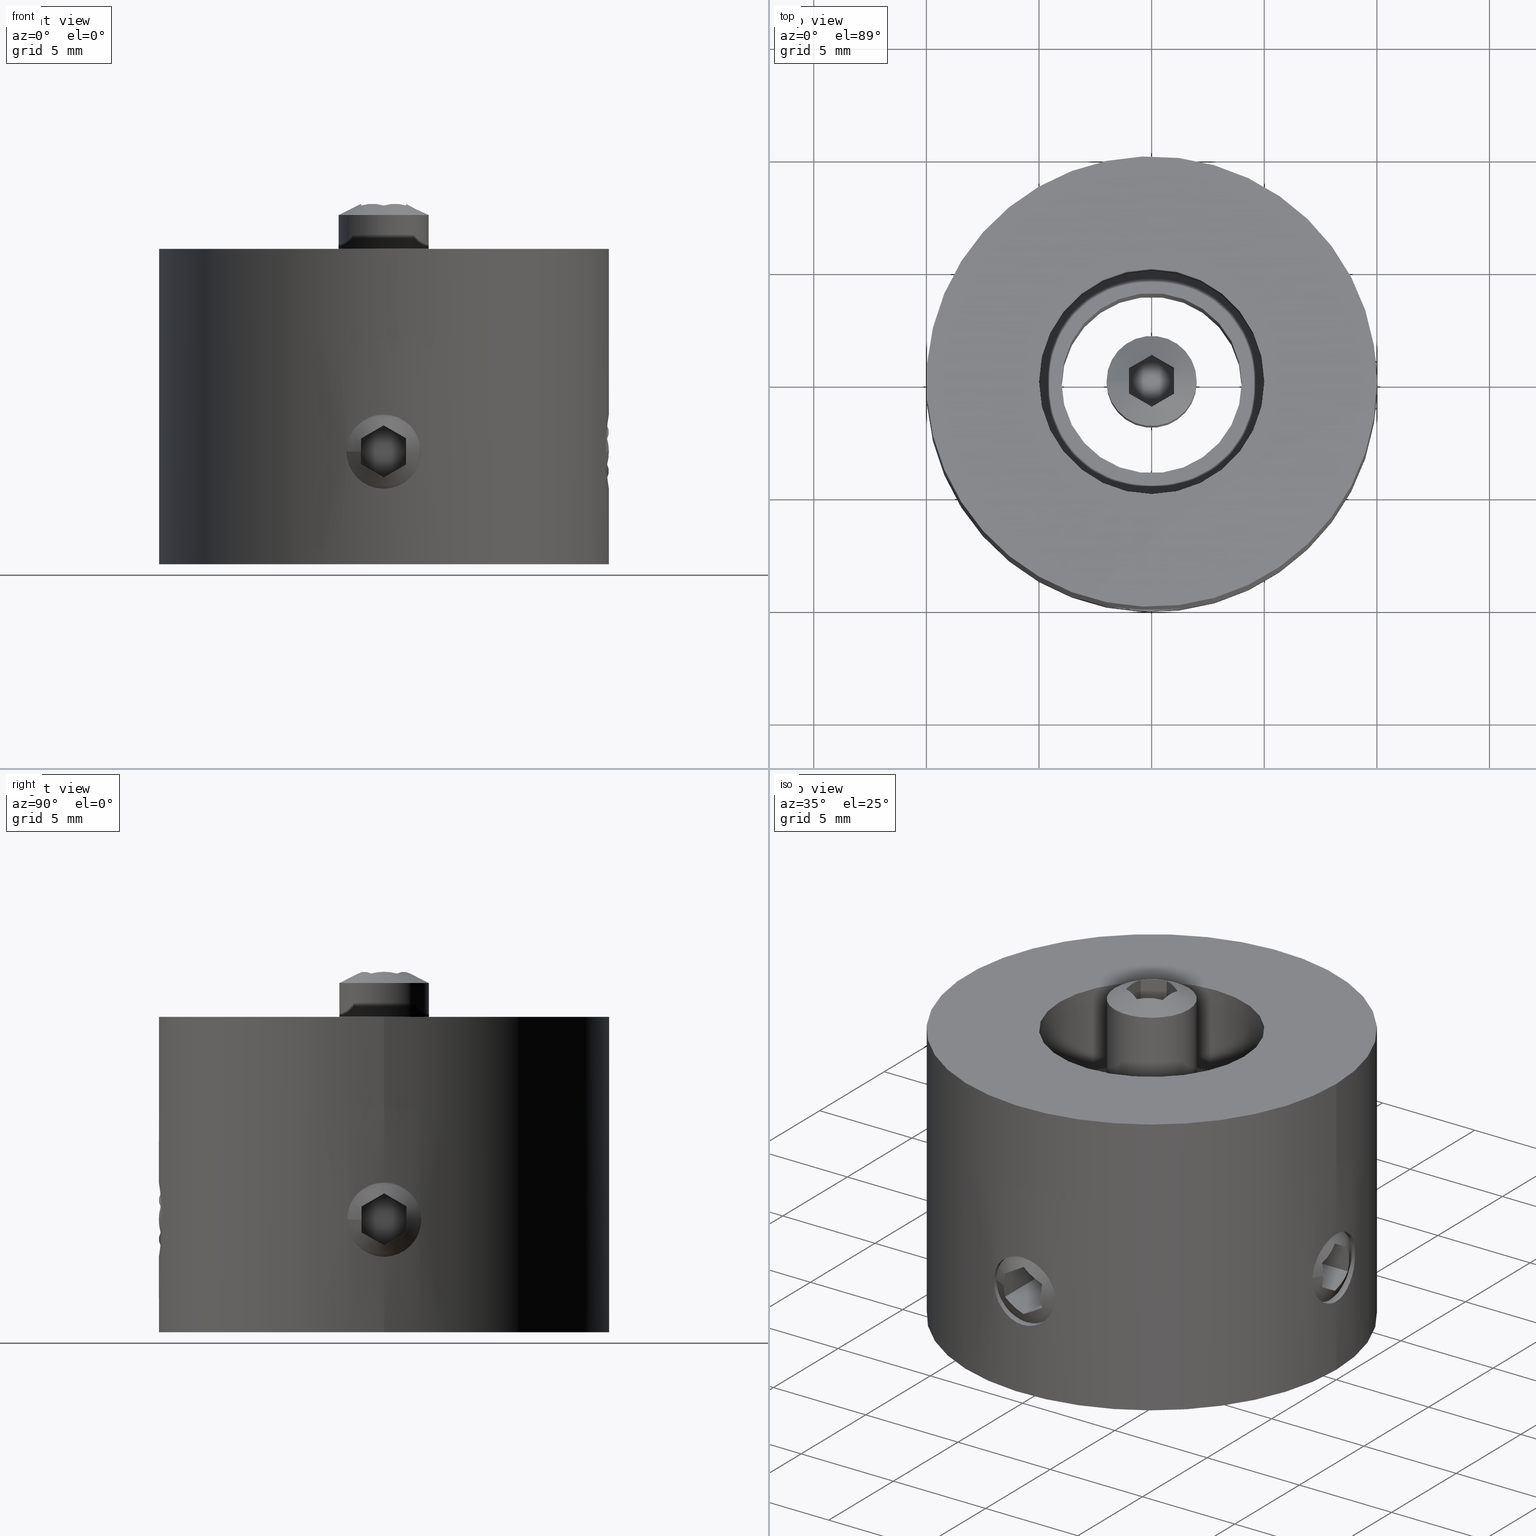
[diagram: canonical four-view strip — front | top / right | iso, engineering-drawing reading convention]
A machine part, canonical four-view strip (front | top / right | iso — engineering-drawing reading convention). The complete STEP part file that produces these views, byte-faithful:
ISO-10303-21;
HEADER;
FILE_DESCRIPTION( ( 'STEP AP203' ), '1' );
FILE_NAME( ' ', '  ', ( '  ' ), ( '  ' ), 'PSStep 10.0', '  ', '  ' );
FILE_SCHEMA( ( 'CONFIG_CONTROL_DESIGN' ) );
ENDSEC;
DATA;
#1 = DESIGN_CONTEXT( '', #93, 'design' );
#2 = APPLICATION_PROTOCOL_DEFINITION( 'INTERNATIONAL STANDARD', 'config_control_design', 1994, #93 );
#3 = PRODUCT_CATEGORY_RELATIONSHIP( 'NONE', 'NONE', #94, #95 );
#4 = DATE_AND_TIME( #96, #97 );
#5 = DATE_TIME_ROLE( 'creation_date' );
#6 = DATE_TIME_ROLE( 'classification_date' );
#7 = PERSON_AND_ORGANIZATION_ROLE( 'creator' );
#8 = PERSON_AND_ORGANIZATION_ROLE( 'design_supplier' );
#9 = PERSON_AND_ORGANIZATION_ROLE( 'classification_officer' );
#10 = PERSON_AND_ORGANIZATION_ROLE( 'design_owner' );
#11 = APPROVAL_PERSON_ORGANIZATION( #98, #99, #100 );
#12 = APPROVAL_DATE_TIME( #4, #99 );
#13 = CC_DESIGN_APPROVAL( #99, ( #101, #102, #103 ) );
#14 = CC_DESIGN_DATE_AND_TIME_ASSIGNMENT( #4, #5, ( #103 ) );
#15 = CC_DESIGN_DATE_AND_TIME_ASSIGNMENT( #4, #6, ( #101 ) );
#16 = CC_DESIGN_PERSON_AND_ORGANIZATION_ASSIGNMENT( #98, #10, ( #104 ) );
#17 = CC_DESIGN_PERSON_AND_ORGANIZATION_ASSIGNMENT( #98, #7, ( #103 ) );
#18 = CC_DESIGN_PERSON_AND_ORGANIZATION_ASSIGNMENT( #98, #7, ( #102 ) );
#19 = CC_DESIGN_PERSON_AND_ORGANIZATION_ASSIGNMENT( #98, #8, ( #102 ) );
#20 = CC_DESIGN_SECURITY_CLASSIFICATION( #101, ( #102 ) );
#21 = CC_DESIGN_PERSON_AND_ORGANIZATION_ASSIGNMENT( #98, #9, ( #101 ) );
#22 = SHAPE_DEFINITION_REPRESENTATION( #105, #106 );
#23 = DESIGN_CONTEXT( '', #107, 'design' );
#24 = APPLICATION_PROTOCOL_DEFINITION( 'INTERNATIONAL STANDARD', 'config_control_design', 1994, #107 );
#25 = PRODUCT_CATEGORY_RELATIONSHIP( 'NONE', 'NONE', #108, #109 );
#26 = DATE_AND_TIME( #110, #111 );
#27 = DATE_TIME_ROLE( 'creation_date' );
#28 = DATE_TIME_ROLE( 'classification_date' );
#29 = PERSON_AND_ORGANIZATION_ROLE( 'creator' );
#30 = PERSON_AND_ORGANIZATION_ROLE( 'design_supplier' );
#31 = PERSON_AND_ORGANIZATION_ROLE( 'classification_officer' );
#32 = PERSON_AND_ORGANIZATION_ROLE( 'design_owner' );
#33 = APPROVAL_PERSON_ORGANIZATION( #112, #113, #114 );
#34 = APPROVAL_DATE_TIME( #26, #113 );
#35 = CC_DESIGN_APPROVAL( #113, ( #115, #116, #117 ) );
#36 = CC_DESIGN_DATE_AND_TIME_ASSIGNMENT( #26, #27, ( #117 ) );
#37 = CC_DESIGN_DATE_AND_TIME_ASSIGNMENT( #26, #28, ( #115 ) );
#38 = CC_DESIGN_PERSON_AND_ORGANIZATION_ASSIGNMENT( #112, #32, ( #118 ) );
#39 = CC_DESIGN_PERSON_AND_ORGANIZATION_ASSIGNMENT( #112, #29, ( #117 ) );
#40 = CC_DESIGN_PERSON_AND_ORGANIZATION_ASSIGNMENT( #112, #29, ( #116 ) );
#41 = CC_DESIGN_PERSON_AND_ORGANIZATION_ASSIGNMENT( #112, #30, ( #116 ) );
#42 = CC_DESIGN_SECURITY_CLASSIFICATION( #115, ( #116 ) );
#43 = CC_DESIGN_PERSON_AND_ORGANIZATION_ASSIGNMENT( #112, #31, ( #115 ) );
#44 = SHAPE_DEFINITION_REPRESENTATION( #119, #120 );
#45 = DESIGN_CONTEXT( '', #121, 'design' );
#46 = APPLICATION_PROTOCOL_DEFINITION( 'INTERNATIONAL STANDARD', 'config_control_design', 1994, #121 );
#47 = PRODUCT_CATEGORY_RELATIONSHIP( 'NONE', 'NONE', #122, #123 );
#48 = DATE_AND_TIME( #124, #125 );
#49 = DATE_TIME_ROLE( 'creation_date' );
#50 = DATE_TIME_ROLE( 'classification_date' );
#51 = PERSON_AND_ORGANIZATION_ROLE( 'creator' );
#52 = PERSON_AND_ORGANIZATION_ROLE( 'design_supplier' );
#53 = PERSON_AND_ORGANIZATION_ROLE( 'classification_officer' );
#54 = PERSON_AND_ORGANIZATION_ROLE( 'design_owner' );
#55 = APPROVAL_PERSON_ORGANIZATION( #126, #127, #128 );
#56 = APPROVAL_DATE_TIME( #48, #127 );
#57 = CC_DESIGN_APPROVAL( #127, ( #129, #130, #131 ) );
#58 = CC_DESIGN_DATE_AND_TIME_ASSIGNMENT( #48, #49, ( #131 ) );
#59 = CC_DESIGN_DATE_AND_TIME_ASSIGNMENT( #48, #50, ( #129 ) );
#60 = CC_DESIGN_PERSON_AND_ORGANIZATION_ASSIGNMENT( #126, #54, ( #132 ) );
#61 = CC_DESIGN_PERSON_AND_ORGANIZATION_ASSIGNMENT( #126, #51, ( #131 ) );
#62 = CC_DESIGN_PERSON_AND_ORGANIZATION_ASSIGNMENT( #126, #51, ( #130 ) );
#63 = CC_DESIGN_PERSON_AND_ORGANIZATION_ASSIGNMENT( #126, #52, ( #130 ) );
#64 = CC_DESIGN_SECURITY_CLASSIFICATION( #129, ( #130 ) );
#65 = CC_DESIGN_PERSON_AND_ORGANIZATION_ASSIGNMENT( #126, #53, ( #129 ) );
#66 = SHAPE_DEFINITION_REPRESENTATION( #133, #134 );
#67 = DESIGN_CONTEXT( '', #135, 'design' );
#68 = APPLICATION_PROTOCOL_DEFINITION( 'INTERNATIONAL STANDARD', 'config_control_design', 1994, #135 );
#69 = PRODUCT_CATEGORY_RELATIONSHIP( 'NONE', 'NONE', #136, #137 );
#70 = DATE_AND_TIME( #138, #139 );
#71 = DATE_TIME_ROLE( 'creation_date' );
#72 = DATE_TIME_ROLE( 'classification_date' );
#73 = PERSON_AND_ORGANIZATION_ROLE( 'creator' );
#74 = PERSON_AND_ORGANIZATION_ROLE( 'design_supplier' );
#75 = PERSON_AND_ORGANIZATION_ROLE( 'classification_officer' );
#76 = PERSON_AND_ORGANIZATION_ROLE( 'design_owner' );
#77 = APPROVAL_PERSON_ORGANIZATION( #140, #141, #142 );
#78 = APPROVAL_DATE_TIME( #70, #141 );
#79 = CC_DESIGN_APPROVAL( #141, ( #143, #144, #145 ) );
#80 = CC_DESIGN_DATE_AND_TIME_ASSIGNMENT( #70, #71, ( #145 ) );
#81 = CC_DESIGN_DATE_AND_TIME_ASSIGNMENT( #70, #72, ( #143 ) );
#82 = CC_DESIGN_PERSON_AND_ORGANIZATION_ASSIGNMENT( #140, #76, ( #146 ) );
#83 = CC_DESIGN_PERSON_AND_ORGANIZATION_ASSIGNMENT( #140, #73, ( #145 ) );
#84 = CC_DESIGN_PERSON_AND_ORGANIZATION_ASSIGNMENT( #140, #73, ( #144 ) );
#85 = CC_DESIGN_PERSON_AND_ORGANIZATION_ASSIGNMENT( #140, #74, ( #144 ) );
#86 = CC_DESIGN_SECURITY_CLASSIFICATION( #143, ( #144 ) );
#87 = CC_DESIGN_PERSON_AND_ORGANIZATION_ASSIGNMENT( #140, #75, ( #143 ) );
#88 = SHAPE_DEFINITION_REPRESENTATION( #147, #148 );
#89 =  ( GEOMETRIC_REPRESENTATION_CONTEXT( 3 )GLOBAL_UNCERTAINTY_ASSIGNED_CONTEXT( ( #151 ) )GLOBAL_UNIT_ASSIGNED_CONTEXT( ( #153, #154, #155 ) )REPRESENTATION_CONTEXT( 'NONE', 'WORKSPACE' ) );
#93 = APPLICATION_CONTEXT( 'CONFIGURATION CONTROLLED 3D DESIGNS OF MECHANICAL PARTS AND ASSEMBLIES' );
#94 = PRODUCT_CATEGORY( 'part', 'NONE' );
#95 = PRODUCT_RELATED_PRODUCT_CATEGORY( 'detail', ' ', ( #104 ) );
#96 = CALENDAR_DATE( 2018, 1, 9 );
#97 = LOCAL_TIME( 8, 27, 3.00000000000000, #157 );
#98 = PERSON_AND_ORGANIZATION( #158, #159 );
#99 = APPROVAL( #160, 'SOLID MODEL' );
#100 = APPROVAL_ROLE( 'APPROVED' );
#101 = SECURITY_CLASSIFICATION( '', '', #161 );
#102 = PRODUCT_DEFINITION_FORMATION_WITH_SPECIFIED_SOURCE( ' ', 'NONE', #104, .NOT_KNOWN. );
#103 = PRODUCT_DEFINITION( 'NONE', 'NONE', #102, #1 );
#104 = PRODUCT( '1', '1', 'PART-1-DESC', ( #162 ) );
#105 = PRODUCT_DEFINITION_SHAPE( 'NONE', 'NONE', #103 );
#106 = ADVANCED_BREP_SHAPE_REPRESENTATION( '1', ( #163, #164 ), #89 );
#107 = APPLICATION_CONTEXT( 'CONFIGURATION CONTROLLED 3D DESIGNS OF MECHANICAL PARTS AND ASSEMBLIES' );
#108 = PRODUCT_CATEGORY( 'part', 'NONE' );
#109 = PRODUCT_RELATED_PRODUCT_CATEGORY( 'detail', ' ', ( #118 ) );
#110 = CALENDAR_DATE( 2018, 1, 9 );
#111 = LOCAL_TIME( 8, 27, 3.00000000000000, #165 );
#112 = PERSON_AND_ORGANIZATION( #166, #167 );
#113 = APPROVAL( #168, 'SOLID MODEL' );
#114 = APPROVAL_ROLE( 'APPROVED' );
#115 = SECURITY_CLASSIFICATION( '', '', #169 );
#116 = PRODUCT_DEFINITION_FORMATION_WITH_SPECIFIED_SOURCE( ' ', 'NONE', #118, .NOT_KNOWN. );
#117 = PRODUCT_DEFINITION( 'NONE', 'NONE', #116, #23 );
#118 = PRODUCT( '2', '2', 'PART-2-DESC', ( #170 ) );
#119 = PRODUCT_DEFINITION_SHAPE( 'NONE', 'NONE', #117 );
#120 = ADVANCED_BREP_SHAPE_REPRESENTATION( '2', ( #171, #172 ), #89 );
#121 = APPLICATION_CONTEXT( 'CONFIGURATION CONTROLLED 3D DESIGNS OF MECHANICAL PARTS AND ASSEMBLIES' );
#122 = PRODUCT_CATEGORY( 'part', 'NONE' );
#123 = PRODUCT_RELATED_PRODUCT_CATEGORY( 'detail', ' ', ( #132 ) );
#124 = CALENDAR_DATE( 2018, 1, 9 );
#125 = LOCAL_TIME( 8, 27, 3.00000000000000, #173 );
#126 = PERSON_AND_ORGANIZATION( #174, #175 );
#127 = APPROVAL( #176, 'SOLID MODEL' );
#128 = APPROVAL_ROLE( 'APPROVED' );
#129 = SECURITY_CLASSIFICATION( '', '', #177 );
#130 = PRODUCT_DEFINITION_FORMATION_WITH_SPECIFIED_SOURCE( ' ', 'NONE', #132, .NOT_KNOWN. );
#131 = PRODUCT_DEFINITION( 'NONE', 'NONE', #130, #45 );
#132 = PRODUCT( 'Assem1', 'Assem1', 'PART-Assem1-DESC', ( #178 ) );
#133 = PRODUCT_DEFINITION_SHAPE( 'NONE', 'NONE', #131 );
#134 = ADVANCED_BREP_SHAPE_REPRESENTATION( 'Assem1', ( #179, #180, #181 ), #89 );
#135 = APPLICATION_CONTEXT( 'CONFIGURATION CONTROLLED 3D DESIGNS OF MECHANICAL PARTS AND ASSEMBLIES' );
#136 = PRODUCT_CATEGORY( 'part', 'NONE' );
#137 = PRODUCT_RELATED_PRODUCT_CATEGORY( 'detail', ' ', ( #146 ) );
#138 = CALENDAR_DATE( 2018, 1, 9 );
#139 = LOCAL_TIME( 8, 27, 3.00000000000000, #182 );
#140 = PERSON_AND_ORGANIZATION( #183, #184 );
#141 = APPROVAL( #185, 'SOLID MODEL' );
#142 = APPROVAL_ROLE( 'APPROVED' );
#143 = SECURITY_CLASSIFICATION( '', '', #186 );
#144 = PRODUCT_DEFINITION_FORMATION_WITH_SPECIFIED_SOURCE( ' ', 'NONE', #146, .NOT_KNOWN. );
#145 = PRODUCT_DEFINITION( 'NONE', 'NONE', #144, #67 );
#146 = PRODUCT( '3', '3', 'PART-3-DESC', ( #187 ) );
#147 = PRODUCT_DEFINITION_SHAPE( 'NONE', 'NONE', #145 );
#148 = ADVANCED_BREP_SHAPE_REPRESENTATION( '3', ( #188 ), #89 );
#151 = UNCERTAINTY_MEASURE_WITH_UNIT( LENGTH_MEASURE( 0.00100000000000000 ), #153, '', '' );
#153 =  ( CONVERSION_BASED_UNIT( 'MILLIMETRE', #191 )LENGTH_UNIT(  )NAMED_UNIT( #194 ) );
#154 =  ( NAMED_UNIT( #196 )PLANE_ANGLE_UNIT(  )SI_UNIT( $, .RADIAN. ) );
#155 =  ( NAMED_UNIT( #196 )SI_UNIT( $, .STERADIAN. )SOLID_ANGLE_UNIT(  ) );
#157 = COORDINATED_UNIVERSAL_TIME_OFFSET( 9, 0, .AHEAD. );
#158 = PERSON( '', 'UNSPECIFIED', $, $, $, $ );
#159 = ORGANIZATION( 'UNSPECIFIED', 'UNSPECIFIED', 'UNSPECIFIED' );
#160 = APPROVAL_STATUS( 'approved' );
#161 = SECURITY_CLASSIFICATION_LEVEL( 'unclassified' );
#162 = MECHANICAL_CONTEXT( '', #93, 'mechanical' );
#163 = MANIFOLD_SOLID_BREP( '1', #202 );
#164 = AXIS2_PLACEMENT_3D( '', #203, #204, #205 );
#165 = COORDINATED_UNIVERSAL_TIME_OFFSET( 9, 0, .AHEAD. );
#166 = PERSON( '', 'UNSPECIFIED', $, $, $, $ );
#167 = ORGANIZATION( 'UNSPECIFIED', 'UNSPECIFIED', 'UNSPECIFIED' );
#168 = APPROVAL_STATUS( 'approved' );
#169 = SECURITY_CLASSIFICATION_LEVEL( 'unclassified' );
#170 = MECHANICAL_CONTEXT( '', #107, 'mechanical' );
#171 = MANIFOLD_SOLID_BREP( '2', #206 );
#172 = AXIS2_PLACEMENT_3D( '', #207, #208, #209 );
#173 = COORDINATED_UNIVERSAL_TIME_OFFSET( 9, 0, .AHEAD. );
#174 = PERSON( '', 'UNSPECIFIED', $, $, $, $ );
#175 = ORGANIZATION( 'UNSPECIFIED', 'UNSPECIFIED', 'UNSPECIFIED' );
#176 = APPROVAL_STATUS( 'approved' );
#177 = SECURITY_CLASSIFICATION_LEVEL( 'unclassified' );
#178 = MECHANICAL_CONTEXT( '', #121, 'mechanical' );
#179 = MAPPED_ITEM( '', #210, #211 );
#180 = MAPPED_ITEM( '', #212, #213 );
#181 = AXIS2_PLACEMENT_3D( '', #214, #215, #216 );
#182 = COORDINATED_UNIVERSAL_TIME_OFFSET( 9, 0, .AHEAD. );
#183 = PERSON( '', 'UNSPECIFIED', $, $, $, $ );
#184 = ORGANIZATION( 'UNSPECIFIED', 'UNSPECIFIED', 'UNSPECIFIED' );
#185 = APPROVAL_STATUS( 'approved' );
#186 = SECURITY_CLASSIFICATION_LEVEL( 'unclassified' );
#187 = MECHANICAL_CONTEXT( '', #135, 'mechanical' );
#188 = MANIFOLD_SOLID_BREP( '3', #217 );
#191 = LENGTH_MEASURE_WITH_UNIT( LENGTH_MEASURE( 1.00000000000000 ), #218 );
#194 = DIMENSIONAL_EXPONENTS( 1.00000000000000, 0.000000000000000, 0.000000000000000, 0.000000000000000, 0.000000000000000, 0.000000000000000, 0.000000000000000 );
#196 = DIMENSIONAL_EXPONENTS( 0.000000000000000, 0.000000000000000, 0.000000000000000, 0.000000000000000, 0.000000000000000, 0.000000000000000, 0.000000000000000 );
#202 = CLOSED_SHELL( '', ( #219, #220, #221, #222, #223, #224 ) );
#203 = CARTESIAN_POINT( '', ( 0.000000000000000, 0.000000000000000, 0.000000000000000 ) );
#204 = DIRECTION( '', ( 0.000000000000000, 0.000000000000000, 1.00000000000000 ) );
#205 = DIRECTION( '', ( 1.00000000000000, 0.000000000000000, 0.000000000000000 ) );
#206 = CLOSED_SHELL( '', ( #225, #226, #227, #228 ) );
#207 = CARTESIAN_POINT( '', ( 0.000000000000000, 0.000000000000000, 0.000000000000000 ) );
#208 = DIRECTION( '', ( 0.000000000000000, 0.000000000000000, 1.00000000000000 ) );
#209 = DIRECTION( '', ( 1.00000000000000, 0.000000000000000, 0.000000000000000 ) );
#210 = REPRESENTATION_MAP( #181, #148 );
#211 = AXIS2_PLACEMENT_3D( '', #229, #230, #231 );
#212 = REPRESENTATION_MAP( #181, #148 );
#213 = AXIS2_PLACEMENT_3D( '', #232, #233, #234 );
#214 = CARTESIAN_POINT( '', ( 0.000000000000000, 0.000000000000000, 0.000000000000000 ) );
#215 = DIRECTION( '', ( 0.000000000000000, 0.000000000000000, 1.00000000000000 ) );
#216 = DIRECTION( '', ( 1.00000000000000, 0.000000000000000, 0.000000000000000 ) );
#217 = CLOSED_SHELL( '', ( #235, #236, #237, #238, #239, #240, #241, #242, #243, #244, #245 ) );
#218 =  ( LENGTH_UNIT(  )NAMED_UNIT( #194 )SI_UNIT( .MILLI., .METRE. ) );
#219 = ADVANCED_FACE( '', ( #247, #248, #249, #250 ), #251, .T. );
#220 = ADVANCED_FACE( '', ( #252, #253, #254, #255 ), #256, .F. );
#221 = ADVANCED_FACE( '', ( #257, #258 ), #259, .F. );
#222 = ADVANCED_FACE( '', ( #260, #261 ), #262, .F. );
#223 = ADVANCED_FACE( '', ( #263, #264 ), #265, .T. );
#224 = ADVANCED_FACE( '', ( #266, #267 ), #268, .F. );
#225 = ADVANCED_FACE( '', ( #269, #270 ), #271, .T. );
#226 = ADVANCED_FACE( '', ( #272, #273 ), #274, .F. );
#227 = ADVANCED_FACE( '', ( #275, #276 ), #277, .T. );
#228 = ADVANCED_FACE( '', ( #278, #279 ), #280, .F. );
#229 = CARTESIAN_POINT( '', ( 0.000000000000000, -4.00000000000000, -5.00000000000000 ) );
#230 = DIRECTION( '', ( 0.000000000000000, -1.00000000000000, 0.000000000000000 ) );
#231 = DIRECTION( '', ( 1.00000000000000, 0.000000000000000, 0.000000000000000 ) );
#232 = CARTESIAN_POINT( '', ( 4.00000000000000, -2.44921270764475E-016, -5.00000000000000 ) );
#233 = DIRECTION( '', ( 1.00000000000000, -6.12303176911189E-017, 0.000000000000000 ) );
#234 = DIRECTION( '', ( 6.12303176911189E-017, 1.00000000000000, 0.000000000000000 ) );
#235 = ADVANCED_FACE( '', ( #281, #282 ), #283, .T. );
#236 = ADVANCED_FACE( '', ( #284, #285 ), #286, .F. );
#237 = ADVANCED_FACE( '', ( #287 ), #288, .T. );
#238 = ADVANCED_FACE( '', ( #289 ), #290, .T. );
#239 = ADVANCED_FACE( '', ( #291 ), #292, .T. );
#240 = ADVANCED_FACE( '', ( #293 ), #294, .T. );
#241 = ADVANCED_FACE( '', ( #295 ), #296, .T. );
#242 = ADVANCED_FACE( '', ( #297 ), #298, .T. );
#243 = ADVANCED_FACE( '', ( #299 ), #300, .T. );
#244 = ADVANCED_FACE( '', ( #301, #302 ), #303, .T. );
#245 = ADVANCED_FACE( '', ( #304, #305 ), #306, .T. );
#247 = FACE_BOUND( '', #307, .T. );
#248 = FACE_BOUND( '', #308, .T. );
#249 = FACE_OUTER_BOUND( '', #309, .T. );
#250 = FACE_OUTER_BOUND( '', #310, .T. );
#251 = CYLINDRICAL_SURFACE( '', #311, 10.0000000000000 );
#252 = FACE_BOUND( '', #312, .T. );
#253 = FACE_BOUND( '', #313, .T. );
#254 = FACE_OUTER_BOUND( '', #314, .T. );
#255 = FACE_OUTER_BOUND( '', #315, .T. );
#256 = CYLINDRICAL_SURFACE( '', #316, 4.00000000000000 );
#257 = FACE_OUTER_BOUND( '', #317, .T. );
#258 = FACE_OUTER_BOUND( '', #318, .T. );
#259 = CYLINDRICAL_SURFACE( '', #319, 1.65000000000000 );
#260 = FACE_OUTER_BOUND( '', #320, .T. );
#261 = FACE_OUTER_BOUND( '', #321, .T. );
#262 = CYLINDRICAL_SURFACE( '', #322, 1.65000000000000 );
#263 = FACE_OUTER_BOUND( '', #323, .T. );
#264 = FACE_BOUND( '', #324, .T. );
#265 = PLANE( '', #325 );
#266 = FACE_OUTER_BOUND( '', #326, .T. );
#267 = FACE_BOUND( '', #327, .T. );
#268 = PLANE( '', #328 );
#269 = FACE_OUTER_BOUND( '', #329, .T. );
#270 = FACE_OUTER_BOUND( '', #330, .T. );
#271 = CYLINDRICAL_SURFACE( '', #331, 10.0000000000000 );
#272 = FACE_OUTER_BOUND( '', #332, .T. );
#273 = FACE_BOUND( '', #333, .T. );
#274 = PLANE( '', #334 );
#275 = FACE_OUTER_BOUND( '', #335, .T. );
#276 = FACE_BOUND( '', #336, .T. );
#277 = PLANE( '', #337 );
#278 = FACE_OUTER_BOUND( '', #338, .T. );
#279 = FACE_OUTER_BOUND( '', #339, .T. );
#280 = CYLINDRICAL_SURFACE( '', #340, 5.00000000000000 );
#281 = FACE_OUTER_BOUND( '', #341, .T. );
#282 = FACE_BOUND( '', #342, .T. );
#283 = CONICAL_SURFACE( '', #343, 2.00000000000000, 1.10714871779409 );
#284 = FACE_OUTER_BOUND( '', #344, .T. );
#285 = FACE_BOUND( '', #345, .T. );
#286 = CONICAL_SURFACE( '', #346, 865.768711028376, 1.04668439371294 );
#287 = FACE_OUTER_BOUND( '', #347, .T. );
#288 = PLANE( '', #348 );
#289 = FACE_OUTER_BOUND( '', #349, .T. );
#290 = PLANE( '', #350 );
#291 = FACE_OUTER_BOUND( '', #351, .T. );
#292 = PLANE( '', #352 );
#293 = FACE_OUTER_BOUND( '', #353, .T. );
#294 = PLANE( '', #354 );
#295 = FACE_OUTER_BOUND( '', #355, .T. );
#296 = PLANE( '', #356 );
#297 = FACE_OUTER_BOUND( '', #357, .T. );
#298 = PLANE( '', #358 );
#299 = FACE_OUTER_BOUND( '', #359, .T. );
#300 = PLANE( '', #360 );
#301 = FACE_OUTER_BOUND( '', #361, .T. );
#302 = FACE_OUTER_BOUND( '', #362, .T. );
#303 = CYLINDRICAL_SURFACE( '', #363, 2.00000000000000 );
#304 = FACE_OUTER_BOUND( '', #364, .T. );
#305 = FACE_BOUND( '', #365, .T. );
#306 = CONICAL_SURFACE( '', #366, 1.00000000000000, 0.785398163397448 );
#307 = EDGE_LOOP( '', ( #367 ) );
#308 = EDGE_LOOP( '', ( #368 ) );
#309 = EDGE_LOOP( '', ( #369 ) );
#310 = EDGE_LOOP( '', ( #370 ) );
#311 = AXIS2_PLACEMENT_3D( '', #371, #372, #373 );
#312 = EDGE_LOOP( '', ( #374 ) );
#313 = EDGE_LOOP( '', ( #375 ) );
#314 = EDGE_LOOP( '', ( #376 ) );
#315 = EDGE_LOOP( '', ( #377 ) );
#316 = AXIS2_PLACEMENT_3D( '', #378, #379, #380 );
#317 = EDGE_LOOP( '', ( #381 ) );
#318 = EDGE_LOOP( '', ( #382 ) );
#319 = AXIS2_PLACEMENT_3D( '', #383, #384, #385 );
#320 = EDGE_LOOP( '', ( #386 ) );
#321 = EDGE_LOOP( '', ( #387 ) );
#322 = AXIS2_PLACEMENT_3D( '', #388, #389, #390 );
#323 = EDGE_LOOP( '', ( #391 ) );
#324 = EDGE_LOOP( '', ( #392 ) );
#325 = AXIS2_PLACEMENT_3D( '', #393, #394, #395 );
#326 = EDGE_LOOP( '', ( #396 ) );
#327 = EDGE_LOOP( '', ( #397 ) );
#328 = AXIS2_PLACEMENT_3D( '', #398, #399, #400 );
#329 = EDGE_LOOP( '', ( #401 ) );
#330 = EDGE_LOOP( '', ( #402 ) );
#331 = AXIS2_PLACEMENT_3D( '', #403, #404, #405 );
#332 = EDGE_LOOP( '', ( #406 ) );
#333 = EDGE_LOOP( '', ( #407 ) );
#334 = AXIS2_PLACEMENT_3D( '', #408, #409, #410 );
#335 = EDGE_LOOP( '', ( #411 ) );
#336 = EDGE_LOOP( '', ( #412 ) );
#337 = AXIS2_PLACEMENT_3D( '', #413, #414, #415 );
#338 = EDGE_LOOP( '', ( #416 ) );
#339 = EDGE_LOOP( '', ( #417 ) );
#340 = AXIS2_PLACEMENT_3D( '', #418, #419, #420 );
#341 = EDGE_LOOP( '', ( #421 ) );
#342 = EDGE_LOOP( '', ( #422, #423, #424, #425, #426, #427 ) );
#343 = AXIS2_PLACEMENT_3D( '', #428, #429, #430 );
#344 = EDGE_LOOP( '', ( #431 ) );
#345 = VERTEX_LOOP( '', #432 );
#346 = AXIS2_PLACEMENT_3D( '', #433, #434, #435 );
#347 = EDGE_LOOP( '', ( #436, #437, #438, #439 ) );
#348 = AXIS2_PLACEMENT_3D( '', #440, #441, #442 );
#349 = EDGE_LOOP( '', ( #443, #444, #445, #446 ) );
#350 = AXIS2_PLACEMENT_3D( '', #447, #448, #449 );
#351 = EDGE_LOOP( '', ( #450, #451, #452, #453, #454, #455 ) );
#352 = AXIS2_PLACEMENT_3D( '', #456, #457, #458 );
#353 = EDGE_LOOP( '', ( #459, #460, #461, #462 ) );
#354 = AXIS2_PLACEMENT_3D( '', #463, #464, #465 );
#355 = EDGE_LOOP( '', ( #466, #467, #468, #469 ) );
#356 = AXIS2_PLACEMENT_3D( '', #470, #471, #472 );
#357 = EDGE_LOOP( '', ( #473, #474, #475, #476 ) );
#358 = AXIS2_PLACEMENT_3D( '', #477, #478, #479 );
#359 = EDGE_LOOP( '', ( #480, #481, #482, #483 ) );
#360 = AXIS2_PLACEMENT_3D( '', #484, #485, #486 );
#361 = EDGE_LOOP( '', ( #487 ) );
#362 = EDGE_LOOP( '', ( #488 ) );
#363 = AXIS2_PLACEMENT_3D( '', #489, #490, #491 );
#364 = EDGE_LOOP( '', ( #492 ) );
#365 = EDGE_LOOP( '', ( #493 ) );
#366 = AXIS2_PLACEMENT_3D( '', #494, #495, #496 );
#367 = ORIENTED_EDGE( '', *, *, #497, .F. );
#368 = ORIENTED_EDGE( '', *, *, #498, .F. );
#369 = ORIENTED_EDGE( '', *, *, #499, .T. );
#370 = ORIENTED_EDGE( '', *, *, #500, .F. );
#371 = CARTESIAN_POINT( '', ( 0.000000000000000, 0.000000000000000, -10.0000000000000 ) );
#372 = DIRECTION( '', ( -0.000000000000000, 0.000000000000000, -1.00000000000000 ) );
#373 = DIRECTION( '', ( 1.00000000000000, 0.000000000000000, 0.000000000000000 ) );
#374 = ORIENTED_EDGE( '', *, *, #501, .T. );
#375 = ORIENTED_EDGE( '', *, *, #502, .T. );
#376 = ORIENTED_EDGE( '', *, *, #503, .F. );
#377 = ORIENTED_EDGE( '', *, *, #504, .T. );
#378 = CARTESIAN_POINT( '', ( 0.000000000000000, 0.000000000000000, -10.0000000000000 ) );
#379 = DIRECTION( '', ( -0.000000000000000, 0.000000000000000, -1.00000000000000 ) );
#380 = DIRECTION( '', ( 1.00000000000000, 0.000000000000000, 0.000000000000000 ) );
#381 = ORIENTED_EDGE( '', *, *, #498, .T. );
#382 = ORIENTED_EDGE( '', *, *, #502, .F. );
#383 = CARTESIAN_POINT( '', ( 10.0000000000000, -6.12303176911189E-016, -5.00000000000000 ) );
#384 = DIRECTION( '', ( -1.00000000000000, 6.12303176911189E-017, -0.000000000000000 ) );
#385 = DIRECTION( '', ( 6.12303176911189E-017, 1.00000000000000, 0.000000000000000 ) );
#386 = ORIENTED_EDGE( '', *, *, #497, .T. );
#387 = ORIENTED_EDGE( '', *, *, #501, .F. );
#388 = CARTESIAN_POINT( '', ( 0.000000000000000, -10.0000000000000, -5.00000000000000 ) );
#389 = DIRECTION( '', ( -0.000000000000000, 1.00000000000000, -0.000000000000000 ) );
#390 = DIRECTION( '', ( 1.00000000000000, 0.000000000000000, 0.000000000000000 ) );
#391 = ORIENTED_EDGE( '', *, *, #500, .T. );
#392 = ORIENTED_EDGE( '', *, *, #504, .F. );
#393 = CARTESIAN_POINT( '', ( 0.000000000000000, 0.000000000000000, 0.000000000000000 ) );
#394 = DIRECTION( '', ( 0.000000000000000, 0.000000000000000, 1.00000000000000 ) );
#395 = DIRECTION( '', ( 1.00000000000000, 0.000000000000000, 0.000000000000000 ) );
#396 = ORIENTED_EDGE( '', *, *, #499, .F. );
#397 = ORIENTED_EDGE( '', *, *, #503, .T. );
#398 = CARTESIAN_POINT( '', ( 0.000000000000000, 0.000000000000000, -10.0000000000000 ) );
#399 = DIRECTION( '', ( 0.000000000000000, 0.000000000000000, 1.00000000000000 ) );
#400 = DIRECTION( '', ( 1.00000000000000, 0.000000000000000, 0.000000000000000 ) );
#401 = ORIENTED_EDGE( '', *, *, #505, .F. );
#402 = ORIENTED_EDGE( '', *, *, #506, .T. );
#403 = CARTESIAN_POINT( '', ( 0.000000000000000, 0.000000000000000, 4.00000000000000 ) );
#404 = DIRECTION( '', ( 0.000000000000000, -0.000000000000000, 1.00000000000000 ) );
#405 = DIRECTION( '', ( -1.00000000000000, 0.000000000000000, 0.000000000000000 ) );
#406 = ORIENTED_EDGE( '', *, *, #506, .F. );
#407 = ORIENTED_EDGE( '', *, *, #507, .T. );
#408 = CARTESIAN_POINT( '', ( 0.000000000000000, 0.000000000000000, 0.000000000000000 ) );
#409 = DIRECTION( '', ( 0.000000000000000, 0.000000000000000, 1.00000000000000 ) );
#410 = DIRECTION( '', ( 1.00000000000000, 0.000000000000000, 0.000000000000000 ) );
#411 = ORIENTED_EDGE( '', *, *, #505, .T. );
#412 = ORIENTED_EDGE( '', *, *, #508, .F. );
#413 = CARTESIAN_POINT( '', ( 0.000000000000000, 0.000000000000000, 4.00000000000000 ) );
#414 = DIRECTION( '', ( 0.000000000000000, 0.000000000000000, 1.00000000000000 ) );
#415 = DIRECTION( '', ( 1.00000000000000, 0.000000000000000, 0.000000000000000 ) );
#416 = ORIENTED_EDGE( '', *, *, #508, .T. );
#417 = ORIENTED_EDGE( '', *, *, #507, .F. );
#418 = CARTESIAN_POINT( '', ( 0.000000000000000, 0.000000000000000, 4.00000000000000 ) );
#419 = DIRECTION( '', ( 0.000000000000000, -0.000000000000000, 1.00000000000000 ) );
#420 = DIRECTION( '', ( -1.00000000000000, 0.000000000000000, 0.000000000000000 ) );
#421 = ORIENTED_EDGE( '', *, *, #509, .F. );
#422 = ORIENTED_EDGE( '', *, *, #510, .T. );
#423 = ORIENTED_EDGE( '', *, *, #511, .T. );
#424 = ORIENTED_EDGE( '', *, *, #512, .T. );
#425 = ORIENTED_EDGE( '', *, *, #513, .T. );
#426 = ORIENTED_EDGE( '', *, *, #514, .T. );
#427 = ORIENTED_EDGE( '', *, *, #515, .T. );
#428 = CARTESIAN_POINT( '', ( 0.000000000000000, 0.000000000000000, 5.50000000000000 ) );
#429 = DIRECTION( '', ( -0.000000000000000, -0.000000000000000, -1.00000000000000 ) );
#430 = DIRECTION( '', ( -1.00000000000000, 0.000000000000000, 0.000000000000000 ) );
#431 = ORIENTED_EDGE( '', *, *, #516, .T. );
#432 = VERTEX_POINT( '', #517 );
#433 = CARTESIAN_POINT( '', ( 0.000000000000000, 0.000000000000000, -499.866306882837 ) );
#434 = DIRECTION( '', ( -0.000000000000000, -0.000000000000000, -1.00000000000000 ) );
#435 = DIRECTION( '', ( -1.00000000000000, 0.000000000000000, 0.000000000000000 ) );
#436 = ORIENTED_EDGE( '', *, *, #518, .T. );
#437 = ORIENTED_EDGE( '', *, *, #519, .F. );
#438 = ORIENTED_EDGE( '', *, *, #520, .F. );
#439 = ORIENTED_EDGE( '', *, *, #513, .F. );
#440 = CARTESIAN_POINT( '', ( 1.00000000000000, -0.577350269189626, 11.7462112512353 ) );
#441 = DIRECTION( '', ( -1.00000000000000, 3.75578649684290E-016, 0.000000000000000 ) );
#442 = DIRECTION( '', ( -3.75578649684290E-016, -1.00000000000000, 0.000000000000000 ) );
#443 = ORIENTED_EDGE( '', *, *, #521, .T. );
#444 = ORIENTED_EDGE( '', *, *, #522, .F. );
#445 = ORIENTED_EDGE( '', *, *, #518, .F. );
#446 = ORIENTED_EDGE( '', *, *, #512, .F. );
#447 = CARTESIAN_POINT( '', ( 1.00000000000000, 0.577350269189626, 11.7462112512353 ) );
#448 = DIRECTION( '', ( -0.500000000000000, -0.866025403784439, 0.000000000000000 ) );
#449 = DIRECTION( '', ( 0.866025403784439, -0.500000000000000, 0.000000000000000 ) );
#450 = ORIENTED_EDGE( '', *, *, #519, .T. );
#451 = ORIENTED_EDGE( '', *, *, #522, .T. );
#452 = ORIENTED_EDGE( '', *, *, #523, .T. );
#453 = ORIENTED_EDGE( '', *, *, #524, .T. );
#454 = ORIENTED_EDGE( '', *, *, #525, .T. );
#455 = ORIENTED_EDGE( '', *, *, #526, .T. );
#456 = CARTESIAN_POINT( '', ( 1.00000000000000, 0.577350269189626, 3.50000000000000 ) );
#457 = DIRECTION( '', ( 0.000000000000000, -0.000000000000000, 1.00000000000000 ) );
#458 = DIRECTION( '', ( 1.00000000000000, 0.000000000000000, -0.000000000000000 ) );
#459 = ORIENTED_EDGE( '', *, *, #520, .T. );
#460 = ORIENTED_EDGE( '', *, *, #526, .F. );
#461 = ORIENTED_EDGE( '', *, *, #527, .F. );
#462 = ORIENTED_EDGE( '', *, *, #514, .F. );
#463 = CARTESIAN_POINT( '', ( -2.12108042409203E-016, -1.15470053837925, 11.7462112512353 ) );
#464 = DIRECTION( '', ( -0.500000000000000, 0.866025403784439, 0.000000000000000 ) );
#465 = DIRECTION( '', ( -0.866025403784439, -0.500000000000000, 0.000000000000000 ) );
#466 = ORIENTED_EDGE( '', *, *, #527, .T. );
#467 = ORIENTED_EDGE( '', *, *, #525, .F. );
#468 = ORIENTED_EDGE( '', *, *, #528, .F. );
#469 = ORIENTED_EDGE( '', *, *, #515, .F. );
#470 = CARTESIAN_POINT( '', ( -1.00000000000000, -0.577350269189626, 11.7462112512353 ) );
#471 = DIRECTION( '', ( 0.500000000000000, 0.866025403784439, -0.000000000000000 ) );
#472 = DIRECTION( '', ( -0.866025403784439, 0.500000000000000, 0.000000000000000 ) );
#473 = ORIENTED_EDGE( '', *, *, #528, .T. );
#474 = ORIENTED_EDGE( '', *, *, #524, .F. );
#475 = ORIENTED_EDGE( '', *, *, #529, .F. );
#476 = ORIENTED_EDGE( '', *, *, #510, .F. );
#477 = CARTESIAN_POINT( '', ( -1.00000000000000, 0.577350269189626, 11.7462112512353 ) );
#478 = DIRECTION( '', ( 1.00000000000000, 1.87789324842145E-016, -0.000000000000000 ) );
#479 = DIRECTION( '', ( -1.87789324842145E-016, 1.00000000000000, 0.000000000000000 ) );
#480 = ORIENTED_EDGE( '', *, *, #529, .T. );
#481 = ORIENTED_EDGE( '', *, *, #523, .F. );
#482 = ORIENTED_EDGE( '', *, *, #521, .F. );
#483 = ORIENTED_EDGE( '', *, *, #511, .F. );
#484 = CARTESIAN_POINT( '', ( 7.07026808030676E-017, 1.15470053837925, 11.7462112512353 ) );
#485 = DIRECTION( '', ( 0.500000000000000, -0.866025403784439, 0.000000000000000 ) );
#486 = DIRECTION( '', ( 0.866025403784439, 0.500000000000000, 0.000000000000000 ) );
#487 = ORIENTED_EDGE( '', *, *, #509, .T. );
#488 = ORIENTED_EDGE( '', *, *, #530, .F. );
#489 = CARTESIAN_POINT( '', ( 0.000000000000000, 0.000000000000000, 0.000000000000000 ) );
#490 = DIRECTION( '', ( 0.000000000000000, -0.000000000000000, 1.00000000000000 ) );
#491 = DIRECTION( '', ( -1.00000000000000, 0.000000000000000, 0.000000000000000 ) );
#492 = ORIENTED_EDGE( '', *, *, #530, .T. );
#493 = ORIENTED_EDGE( '', *, *, #516, .F. );
#494 = CARTESIAN_POINT( '', ( 0.000000000000000, 0.000000000000000, -1.08420217248550E-016 ) );
#495 = DIRECTION( '', ( 0.000000000000000, -0.000000000000000, 1.00000000000000 ) );
#496 = DIRECTION( '', ( 1.00000000000000, 0.000000000000000, -0.000000000000000 ) );
#497 = EDGE_CURVE( '', #531, #531, #532, .T. );
#498 = EDGE_CURVE( '', #533, #533, #534, .T. );
#499 = EDGE_CURVE( '', #535, #535, #536, .T. );
#500 = EDGE_CURVE( '', #537, #537, #538, .T. );
#501 = EDGE_CURVE( '', #539, #539, #540, .T. );
#502 = EDGE_CURVE( '', #541, #541, #542, .T. );
#503 = EDGE_CURVE( '', #543, #543, #544, .T. );
#504 = EDGE_CURVE( '', #545, #545, #546, .T. );
#505 = EDGE_CURVE( '', #547, #547, #548, .T. );
#506 = EDGE_CURVE( '', #549, #549, #550, .T. );
#507 = EDGE_CURVE( '', #551, #551, #552, .T. );
#508 = EDGE_CURVE( '', #553, #553, #554, .T. );
#509 = EDGE_CURVE( '', #555, #555, #556, .T. );
#510 = EDGE_CURVE( '', #557, #558, #559, .T. );
#511 = EDGE_CURVE( '', #558, #560, #561, .T. );
#512 = EDGE_CURVE( '', #560, #562, #563, .T. );
#513 = EDGE_CURVE( '', #562, #564, #565, .F. );
#514 = EDGE_CURVE( '', #564, #566, #567, .T. );
#515 = EDGE_CURVE( '', #566, #557, #568, .T. );
#516 = EDGE_CURVE( '', #569, #569, #570, .T. );
#517 = CARTESIAN_POINT( '', ( 0.000000000000000, 0.000000000000000, 0.578034682000000 ) );
#518 = EDGE_CURVE( '', #562, #571, #572, .T. );
#519 = EDGE_CURVE( '', #573, #571, #574, .T. );
#520 = EDGE_CURVE( '', #564, #573, #575, .T. );
#521 = EDGE_CURVE( '', #560, #576, #577, .T. );
#522 = EDGE_CURVE( '', #571, #576, #578, .T. );
#523 = EDGE_CURVE( '', #576, #579, #580, .T. );
#524 = EDGE_CURVE( '', #579, #581, #582, .T. );
#525 = EDGE_CURVE( '', #581, #583, #584, .T. );
#526 = EDGE_CURVE( '', #583, #573, #585, .T. );
#527 = EDGE_CURVE( '', #566, #583, #586, .T. );
#528 = EDGE_CURVE( '', #557, #581, #587, .T. );
#529 = EDGE_CURVE( '', #558, #579, #588, .T. );
#530 = EDGE_CURVE( '', #589, #589, #590, .T. );
#531 = VERTEX_POINT( '', #591 );
#532 = B_SPLINE_CURVE_WITH_KNOTS( '', 3, ( #592, #593, #594, #595, #596, #597, #598, #599, #600, #601, #602, #603, #604, #605, #606, #607, #608, #609, #610, #611, #612, #613, #614, #615, #616, #617, #618, #619, #620, #621, #622, #623, #624, #625, #626, #627, #628, #629, #630, #631, #632, #633, #634, #635, #636, #637, #638, #639, #640, #641 ), .UNSPECIFIED., .T., .F., ( 2, 2, 2, 2, 2, 2, 2, 2, 2, 2, 2, 2, 2, 2, 2, 2, 2, 2, 2, 2, 2, 2, 2, 2, 2, 2, 2 ), ( -0.000645854978295161, 0.000000000000000, 0.000322927489147579, 0.000645854978295158, 0.000968782467442737, 0.00129170995659032, 0.00193756493488547, 0.00258341991318063, 0.00290634740232821, 0.00322927489147579, 0.00387512986977095, 0.00419805735891853, 0.00452098484806611, 0.00484391233721369, 0.00516683982636127, 0.00581269480465643, 0.00645854978295159, 0.00678147727209917, 0.00710440476124675, 0.00775025973954191, 0.00807318722868950, 0.00839611471783708, 0.00871904220698466, 0.00904196969613224, 0.00968782467442740, 0.0103336796527226, 0.0106566071418701 ), .UNSPECIFIED. );
#533 = VERTEX_POINT( '', #642 );
#534 = B_SPLINE_CURVE_WITH_KNOTS( '', 3, ( #643, #644, #645, #646, #647, #648, #649, #650, #651, #652, #653, #654, #655, #656, #657, #658, #659, #660, #661, #662, #663, #664, #665, #666, #667, #668, #669, #670, #671, #672, #673, #674, #675, #676, #677, #678, #679, #680, #681, #682, #683, #684, #685, #686, #687, #688, #689, #690, #691, #692 ), .UNSPECIFIED., .T., .F., ( 2, 2, 2, 2, 2, 2, 2, 2, 2, 2, 2, 2, 2, 2, 2, 2, 2, 2, 2, 2, 2, 2, 2, 2, 2, 2, 2 ), ( -0.000645856105121249, 0.000000000000000, 0.000322928052560626, 0.000645856105121253, 0.000968784157681879, 0.00129171221024251, 0.00193756831536376, 0.00258342442048501, 0.00290635247304564, 0.00322928052560626, 0.00387513663072752, 0.00419806468328814, 0.00452099273584877, 0.00484392078840939, 0.00516684884097002, 0.00581270494609127, 0.00645856105121252, 0.00678148910377314, 0.00710441715633377, 0.00775027326145502, 0.00807320131401564, 0.00839612936657627, 0.00871905741913689, 0.00904198547169752, 0.00968784157681877, 0.0103336976819400, 0.0106566257345006 ), .UNSPECIFIED. );
#535 = VERTEX_POINT( '', #693 );
#536 = CIRCLE( '', #694, 10.0000000000000 );
#537 = VERTEX_POINT( '', #695 );
#538 = CIRCLE( '', #696, 10.0000000000000 );
#539 = VERTEX_POINT( '', #697 );
#540 = B_SPLINE_CURVE_WITH_KNOTS( '', 3, ( #698, #699, #700, #701, #702, #703, #704, #705, #706, #707, #708, #709, #710, #711, #712, #713, #714, #715, #716, #717, #718, #719, #720, #721, #722, #723, #724, #725, #726, #727, #728, #729, #730, #731, #732, #733, #734, #735, #736, #737, #738, #739, #740, #741, #742, #743, #744, #745, #746, #747, #748, #749, #750, #751 ), .UNSPECIFIED., .T., .F., ( 2, 2, 2, 2, 2, 2, 2, 2, 2, 2, 2, 2, 2, 2, 2, 2, 2, 2, 2, 2, 2, 2, 2, 2, 2, 2, 2, 2, 2 ), ( -0.000651913605263665, 0.000000000000000, 0.000325956802631832, 0.000651913605263665, 0.00130382721052733, 0.00195574081579099, 0.00228169761842283, 0.00260765442105466, 0.00293361122368649, 0.00325956802631832, 0.00358552482895015, 0.00391148163158199, 0.00423743843421382, 0.00456339523684565, 0.00521530884210931, 0.00554126564474115, 0.00586722244737298, 0.00651913605263664, 0.00684509285526848, 0.00717104965790031, 0.00749700646053214, 0.00782296326316397, 0.00847487686842764, 0.00880083367105947, 0.00912679047369130, 0.00945274727632314, 0.00977870407895497, 0.0104306176842186, 0.0107565744868505 ), .UNSPECIFIED. );
#541 = VERTEX_POINT( '', #752 );
#542 = B_SPLINE_CURVE_WITH_KNOTS( '', 3, ( #753, #754, #755, #756, #757, #758, #759, #760, #761, #762, #763, #764, #765, #766, #767, #768, #769, #770, #771, #772, #773, #774, #775, #776, #777, #778, #779, #780, #781, #782, #783, #784, #785, #786, #787, #788, #789, #790, #791, #792, #793, #794, #795, #796, #797, #798, #799, #800, #801, #802, #803, #804, #805, #806 ), .UNSPECIFIED., .T., .F., ( 2, 2, 2, 2, 2, 2, 2, 2, 2, 2, 2, 2, 2, 2, 2, 2, 2, 2, 2, 2, 2, 2, 2, 2, 2, 2, 2, 2, 2 ), ( -0.000651949910615195, 0.000000000000000, 0.000325974955307595, 0.000651949910615189, 0.00130389982123038, 0.00195584973184557, 0.00228182468715316, 0.00260779964246076, 0.00293377459776835, 0.00325974955307595, 0.00358572450838354, 0.00391169946369114, 0.00423767441899874, 0.00456364937430633, 0.00521559928492153, 0.00554157424022912, 0.00586754919553672, 0.00651949910615191, 0.00684547406145951, 0.00717144901676711, 0.00749742397207470, 0.00782339892738230, 0.00847534883799750, 0.00880132379330509, 0.00912729874861269, 0.00945327370392029, 0.00977924865922788, 0.0104311985698431, 0.0107571735251507 ), .UNSPECIFIED. );
#543 = VERTEX_POINT( '', #807 );
#544 = CIRCLE( '', #808, 4.00000000000000 );
#545 = VERTEX_POINT( '', #809 );
#546 = CIRCLE( '', #810, 4.00000000000000 );
#547 = VERTEX_POINT( '', #811 );
#548 = CIRCLE( '', #812, 10.0000000000000 );
#549 = VERTEX_POINT( '', #813 );
#550 = CIRCLE( '', #814, 10.0000000000000 );
#551 = VERTEX_POINT( '', #815 );
#552 = CIRCLE( '', #816, 5.00000000000000 );
#553 = VERTEX_POINT( '', #817 );
#554 = CIRCLE( '', #818, 5.00000000000000 );
#555 = VERTEX_POINT( '', #819 );
#556 = CIRCLE( '', #820, 2.00000000000000 );
#557 = VERTEX_POINT( '', #821 );
#558 = VERTEX_POINT( '', #822 );
#559 = B_SPLINE_CURVE_WITH_KNOTS( '', 3, ( #823, #824, #825, #826, #827, #828 ), .UNSPECIFIED., .F., .F., ( 4, 2, 4 ), ( 0.00103458309332885, 0.00161823594737898, 0.00220188880142910 ), .UNSPECIFIED. );
#560 = VERTEX_POINT( '', #829 );
#561 = B_SPLINE_CURVE_WITH_KNOTS( '', 3, ( #830, #831, #832, #833, #834, #835 ), .UNSPECIFIED., .F., .F., ( 4, 2, 4 ), ( 2.34956865816957E-007, 0.000579233426840285, 0.00115823189681475 ), .UNSPECIFIED. );
#562 = VERTEX_POINT( '', #836 );
#563 = B_SPLINE_CURVE_WITH_KNOTS( '', 3, ( #837, #838, #839, #840, #841, #842 ), .UNSPECIFIED., .F., .F., ( 4, 2, 4 ), ( 2.34956865817124E-007, 0.000579233426840285, 0.00115823189681475 ), .UNSPECIFIED. );
#564 = VERTEX_POINT( '', #843 );
#565 = B_SPLINE_CURVE_WITH_KNOTS( '', 3, ( #844, #845, #846, #847, #848, #849 ), .UNSPECIFIED., .F., .F., ( 4, 2, 4 ), ( 0.00103458309332885, 0.00161823594737898, 0.00220188880142910 ), .UNSPECIFIED. );
#566 = VERTEX_POINT( '', #850 );
#567 = B_SPLINE_CURVE_WITH_KNOTS( '', 3, ( #851, #852, #853, #854, #855, #856 ), .UNSPECIFIED., .F., .F., ( 4, 2, 4 ), ( 2.34956865816957E-007, 0.000579233426840285, 0.00115823189681475 ), .UNSPECIFIED. );
#568 = B_SPLINE_CURVE_WITH_KNOTS( '', 3, ( #857, #858, #859, #860, #861, #862 ), .UNSPECIFIED., .F., .F., ( 4, 2, 4 ), ( 2.34956865817119E-007, 0.000579233426840285, 0.00115823189681475 ), .UNSPECIFIED. );
#569 = VERTEX_POINT( '', #863 );
#570 = CIRCLE( '', #864, 1.00000000000000 );
#571 = VERTEX_POINT( '', #865 );
#572 = LINE( '', #866, #867 );
#573 = VERTEX_POINT( '', #868 );
#574 = LINE( '', #869, #870 );
#575 = LINE( '', #871, #872 );
#576 = VERTEX_POINT( '', #873 );
#577 = LINE( '', #874, #875 );
#578 = LINE( '', #876, #877 );
#579 = VERTEX_POINT( '', #878 );
#580 = LINE( '', #879, #880 );
#581 = VERTEX_POINT( '', #881 );
#582 = LINE( '', #882, #883 );
#583 = VERTEX_POINT( '', #884 );
#584 = LINE( '', #885, #886 );
#585 = LINE( '', #887, #888 );
#586 = LINE( '', #889, #890 );
#587 = LINE( '', #891, #892 );
#588 = LINE( '', #893, #894 );
#589 = VERTEX_POINT( '', #895 );
#590 = CIRCLE( '', #896, 2.00000000000000 );
#591 = CARTESIAN_POINT( '', ( 1.65000000000000, -9.86293566845085, -5.00000000000000 ) );
#592 = CARTESIAN_POINT( '', ( 1.65000000000000, -9.86293566845086, -5.21841436253626 ) );
#593 = CARTESIAN_POINT( '', ( 1.65000000000000, -9.86293566845085, -4.89079281873187 ) );
#594 = CARTESIAN_POINT( '', ( 1.63926527518261, -9.86474848926253, -4.78344857279940 ) );
#595 = CARTESIAN_POINT( '', ( 1.59724025971636, -9.87164003352877, -4.57232171462261 ) );
#596 = CARTESIAN_POINT( '', ( 1.56542644403774, -9.87680100993784, -4.46743126881361 ) );
#597 = CARTESIAN_POINT( '', ( 1.48254560968772, -9.88958121746302, -4.26771049418566 ) );
#598 = CARTESIAN_POINT( '', ( 1.43185514551970, -9.89714318999638, -4.17301510751915 ) );
#599 = CARTESIAN_POINT( '', ( 1.31212664871866, -9.91372665241308, -3.99380080110092 ) );
#600 = CARTESIAN_POINT( '', ( 1.24256410864884, -9.92279625291681, -3.90909457310512 ) );
#601 = CARTESIAN_POINT( '', ( 1.01465468495119, -9.94956682646610, -3.68123666701318 ) );
#602 = CARTESIAN_POINT( '', ( 0.830868141320272, -9.96740695646322, -3.55836016826912 ) );
#603 = CARTESIAN_POINT( '', ( 0.433954281828612, -9.99255858052856, -3.39365291609295 ) );
#604 = CARTESIAN_POINT( '', ( 0.216567991732481, -9.99997956631570, -3.35012384053074 ) );
#605 = CARTESIAN_POINT( '', ( -0.106865615143670, -10.0000101497820, -3.34993848615969 ) );
#606 = CARTESIAN_POINT( '', ( -0.216401118690764, -9.99821946212112, -3.36069362476904 ) );
#607 = CARTESIAN_POINT( '', ( -0.428157596186486, -9.99139144112249, -3.40286634595870 ) );
#608 = CARTESIAN_POINT( '', ( -0.531101496160634, -9.98638928503769, -3.43406750772177 ) );
#609 = CARTESIAN_POINT( '', ( -0.831097962933860, -9.96741868199413, -3.55825464994879 ) );
#610 = CARTESIAN_POINT( '', ( -1.01269070642668, -9.94979426213060, -3.67932778032317 ) );
#611 = CARTESIAN_POINT( '', ( -1.24323499037274, -9.92271907493684, -3.90973803451181 ) );
#612 = CARTESIAN_POINT( '', ( -1.31136931969844, -9.91382611245863, -3.99285361528308 ) );
#613 = CARTESIAN_POINT( '', ( -1.43085645899144, -9.89728687441540, -4.17133654198029 ) );
#614 = CARTESIAN_POINT( '', ( -1.48262386122383, -9.88956932367838, -4.26788112343566 ) );
#615 = CARTESIAN_POINT( '', ( -1.56542871407993, -9.87680048714384, -4.46745469260713 ) );
#616 = CARTESIAN_POINT( '', ( -1.59672125424980, -9.87172439561312, -4.57029523134667 ) );
#617 = CARTESIAN_POINT( '', ( -1.63911140905672, -9.86477445740228, -4.78210383051425 ) );
#618 = CARTESIAN_POINT( '', ( -1.64995771511580, -9.86294274241501, -4.89158210679260 ) );
#619 = CARTESIAN_POINT( '', ( -1.65008419103563, -9.86292158388186, -5.21489943565539 ) );
#620 = CARTESIAN_POINT( '', ( -1.60679009147542, -9.87041775163860, -5.43237288754553 ) );
#621 = CARTESIAN_POINT( '', ( -1.44235014030311, -9.89578430760763, -5.82966667084779 ) );
#622 = CARTESIAN_POINT( '', ( -1.31977007573128, -9.91370849315420, -6.01339687918962 ) );
#623 = CARTESIAN_POINT( '', ( -1.09183972159682, -9.94050996213734, -6.24175383801707 ) );
#624 = CARTESIAN_POINT( '', ( -1.00710541882674, -9.94956291264517, -6.31141725398975 ) );
#625 = CARTESIAN_POINT( '', ( -0.828269508366402, -9.96604400445959, -6.43109963322008 ) );
#626 = CARTESIAN_POINT( '', ( -0.733638442198914, -9.97355547456977, -6.48188983949698 ) );
#627 = CARTESIAN_POINT( '', ( -0.433730296054292, -9.99259799566935, -6.60663296100582 ) );
#628 = CARTESIAN_POINT( '', ( -0.219389909931232, -9.99997088591468, -6.64982355094231 ) );
#629 = CARTESIAN_POINT( '', ( 0.107698326599086, -10.0000144241585, -6.65008741917016 ) );
#630 = CARTESIAN_POINT( '', ( 0.214996132315119, -9.99824715833384, -6.63947327610562 ) );
#631 = CARTESIAN_POINT( '', ( 0.426259886497624, -9.99146996618637, -6.59762275557717 ) );
#632 = CARTESIAN_POINT( '', ( 0.531336397573328, -9.98637473722040, -6.56583759241401 ) );
#633 = CARTESIAN_POINT( '', ( 0.730925294120992, -9.97375290319517, -6.48321068888316 ) );
#634 = CARTESIAN_POINT( '', ( 0.825683452404056, -9.96626170248851, -6.43261559772734 ) );
#635 = CARTESIAN_POINT( '', ( 1.00520939553687, -9.94975776374417, -6.31289553489603 ) );
#636 = CARTESIAN_POINT( '', ( 1.08986668551668, -9.94072649474735, -6.24347071636155 ) );
#637 = CARTESIAN_POINT( '', ( 1.31780917543090, -9.91396941287565, -6.01587117083882 ) );
#638 = CARTESIAN_POINT( '', ( 1.44089778054539, -9.89599857143908, -5.83215950397926 ) );
#639 = CARTESIAN_POINT( '', ( 1.60597086048698, -9.87055377044122, -5.43535439507412 ) );
#640 = CARTESIAN_POINT( '', ( 1.65000000000000, -9.86293566845086, -5.21841436253626 ) );
#641 = CARTESIAN_POINT( '', ( 1.65000000000000, -9.86293566845085, -4.89079281873187 ) );
#642 = CARTESIAN_POINT( '', ( 10.0000000000000, 0.000000000000000, -6.65000000000000 ) );
#643 = CARTESIAN_POINT( '', ( 10.0000000000000, -0.218413521290688, -6.64999999999999 ) );
#644 = CARTESIAN_POINT( '', ( 10.0000000000000, 0.109206760645344, -6.65000000000000 ) );
#645 = CARTESIAN_POINT( '', ( 9.99821288436941, 0.216551685979074, -6.63926533805411 ) );
#646 = CARTESIAN_POINT( '', ( 9.99140851602723, 0.427681399793638, -6.59723952540519 ) );
#647 = CARTESIAN_POINT( '', ( 9.98630951004895, 0.532574089260139, -6.56542488020024 ) );
#648 = CARTESIAN_POINT( '', ( 9.97365266895582, 0.732301324644221, -6.48254004533622 ) );
#649 = CARTESIAN_POINT( '', ( 9.96615119886897, 0.826999375447123, -6.43184694824173 ) );
#650 = CARTESIAN_POINT( '', ( 9.94965461747804, 1.00621601985121, -6.31211393239074 ) );
#651 = CARTESIAN_POINT( '', ( 9.94061034622440, 1.09092359330054, -6.24254822515400 ) );
#652 = CARTESIAN_POINT( '', ( 9.91383949388943, 1.31877968475823, -6.01463375465310 ) );
#653 = CARTESIAN_POINT( '', ( 9.89588783493944, 1.44164721442178, -5.83085346742979 ) );
#654 = CARTESIAN_POINT( '', ( 9.87049101626234, 1.60634673418819, -5.43395200743067 ) );
#655 = CARTESIAN_POINT( '', ( 9.86295643638378, 1.64987585889630, -5.21656787386460 ) );
#656 = CARTESIAN_POINT( '', ( 9.86292535280770, 1.65006166214674, -4.89313789468060 ) );
#657 = CARTESIAN_POINT( '', ( 9.86474174528670, 1.63930682768147, -4.78360250684755 ) );
#658 = CARTESIAN_POINT( '', ( 9.87165726058073, 1.59713478019512, -4.57184670476939 ) );
#659 = CARTESIAN_POINT( '', ( 9.87672029203460, 1.56593438951224, -4.46890468628295 ) );
#660 = CARTESIAN_POINT( '', ( 9.89587628197728, 1.44175225651970, -4.16891552243017 ) );
#661 = CARTESIAN_POINT( '', ( 9.91361246064182, 1.32068451129117, -3.98732591794707 ) );
#662 = CARTESIAN_POINT( '', ( 9.94068752476172, 1.09028043850465, -3.75678133093143 ) );
#663 = CARTESIAN_POINT( '', ( 9.94955528150442, 1.00716517697734, -3.68864488535390 ) );
#664 = CARTESIAN_POINT( '', ( 9.96600837323272, 0.828679128543478, -3.56915240771746 ) );
#665 = CARTESIAN_POINT( '', ( 9.97366444897686, 0.732130757234087, -3.51738174675111 ) );
#666 = CARTESIAN_POINT( '', ( 9.98630999433743, 0.532551108786170, -3.43457301445083 ) );
#667 = CARTESIAN_POINT( '', ( 9.99132521443729, 0.429707406061080, -3.40327929159675 ) );
#668 = CARTESIAN_POINT( '', ( 9.99818734439272, 0.217894061183994, -3.36088815098900 ) );
#669 = CARTESIAN_POINT( '', ( 9.99999303635698, 0.108416769528338, -3.35004220390017 ) );
#670 = CARTESIAN_POINT( '', ( 10.0000138650337, -0.214900887729910, -3.34991596948666 ) );
#671 = CARTESIAN_POINT( '', ( 9.99263075130505, -0.432377868655759, -3.39321059534102 ) );
#672 = CARTESIAN_POINT( '', ( 9.96750979620646, -0.829679706729459, -3.55765663017818 ) );
#673 = CARTESIAN_POINT( '', ( 9.94969747660869, -1.01341742951951, -3.68024583375228 ) );
#674 = CARTESIAN_POINT( '', ( 9.92289679111434, -1.24177009285719, -3.90817880450552 ) );
#675 = CARTESIAN_POINT( '', ( 9.91381858354394, -1.31143066334289, -3.99291231361544 ) );
#676 = CARTESIAN_POINT( '', ( 9.89725107927494, -1.43110809024612, -4.17174543354384 ) );
#677 = CARTESIAN_POINT( '', ( 9.88967923800355, -1.48189556350826, -4.26637368204858 ) );
#678 = CARTESIAN_POINT( '', ( 9.87045142839863, -1.60663255494177, -4.56627200280964 ) );
#679 = CARTESIAN_POINT( '', ( 9.86296526681333, -1.64982307464057, -4.78060313993786 ) );
#680 = CARTESIAN_POINT( '', ( 9.86292100472241, -1.65008765300551, -5.10769645933901 ) );
#681 = CARTESIAN_POINT( '', ( 9.86471370556569, -1.63947343157709, -5.21499426371321 ) );
#682 = CARTESIAN_POINT( '', ( 9.87157776883247, -1.59762385420204, -5.42625542431899 ) );
#683 = CARTESIAN_POINT( '', ( 9.87673492332039, -1.56583987523963, -5.53132904719116 ) );
#684 = CARTESIAN_POINT( '', ( 9.88948005394502, -1.48321661366457, -5.73091281848721 ) );
#685 = CARTESIAN_POINT( '', ( 9.89703190055326, -1.43262393777564, -5.82566872510751 ) );
#686 = CARTESIAN_POINT( '', ( 9.91362315694411, -1.31290810407965, -6.00519276805518 ) );
#687 = CARTESIAN_POINT( '', ( 9.92267985476453, -1.24348684221221, -6.08984821623278 ) );
#688 = CARTESIAN_POINT( '', ( 9.94943731891409, -1.01589228987068, -6.31779266203147 ) );
#689 = CARTESIAN_POINT( '', ( 9.96729705080280, -0.832174432425663, -6.44089023524712 ) );
#690 = CARTESIAN_POINT( '', ( 9.99249664085992, -0.435356942436999, -6.60597113569496 ) );
#691 = CARTESIAN_POINT( '', ( 10.0000000000000, -0.218413521290688, -6.64999999999999 ) );
#692 = CARTESIAN_POINT( '', ( 10.0000000000000, 0.109206760645344, -6.65000000000000 ) );
#693 = CARTESIAN_POINT( '', ( 10.0000000000000, 0.000000000000000, -10.0000000000000 ) );
#694 = AXIS2_PLACEMENT_3D( '', #897, #898, #899 );
#695 = CARTESIAN_POINT( '', ( 10.0000000000000, 0.000000000000000, 0.000000000000000 ) );
#696 = AXIS2_PLACEMENT_3D( '', #900, #901, #902 );
#697 = CARTESIAN_POINT( '', ( 1.65000000000000, -3.64383040220041, -5.00000000000000 ) );
#698 = CARTESIAN_POINT( '', ( 1.65000000000000, -3.64383040220041, -5.22065565394765 ) );
#699 = CARTESIAN_POINT( '', ( 1.65000000000000, -3.64383040220041, -4.88967217302617 ) );
#700 = CARTESIAN_POINT( '', ( 1.63904861833031, -3.64884408943529, -4.78146748927046 ) );
#701 = CARTESIAN_POINT( '', ( 1.59640335664562, -3.66770226233645, -4.56903230470622 ) );
#702 = CARTESIAN_POINT( '', ( 1.56413393206446, -3.68178017154260, -4.46369940295167 ) );
#703 = CARTESIAN_POINT( '', ( 1.43944482008129, -3.73310586053222, -4.16511571983869 ) );
#704 = CARTESIAN_POINT( '', ( 1.31736372718986, -3.78011263838404, -3.98399313642890 ) );
#705 = CARTESIAN_POINT( '', ( 1.01672252187769, -3.87181792729113, -3.68318852904229 ) );
#706 = CARTESIAN_POINT( '', ( 0.834859178480150, -3.91705124141565, -3.56068110425944 ) );
#707 = CARTESIAN_POINT( '', ( 0.537648467918897, -3.96497215549953, -3.43636119649500 ) );
#708 = CARTESIAN_POINT( '', ( 0.432413480053276, -3.97800193390489, -3.40394691024679 ) );
#709 = CARTESIAN_POINT( '', ( 0.218827685417464, -3.99544681456000, -3.36095109068173 ) );
#710 = CARTESIAN_POINT( '', ( 0.110913805842670, -3.99994865062582, -3.35012448339723 ) );
#711 = CARTESIAN_POINT( '', ( -0.107178627567341, -4.00005047740183, -3.34987763047568 ) );
#712 = CARTESIAN_POINT( '', ( -0.217773250358640, -3.99549389700751, -3.36083826155150 ) );
#713 = CARTESIAN_POINT( '', ( -0.430581278452609, -3.97819009503595, -3.40347998571537 ) );
#714 = CARTESIAN_POINT( '', ( -0.534361537381680, -3.96545534405825, -3.43512520880838 ) );
#715 = CARTESIAN_POINT( '', ( -0.735526485923390, -3.93311315968130, -3.51899488412595 ) );
#716 = CARTESIAN_POINT( '', ( -0.829993765083261, -3.91400584670613, -3.56994775882289 ) );
#717 = CARTESIAN_POINT( '', ( -1.00766544840699, -3.87207202440936, -3.68906544531792 ) );
#718 = CARTESIAN_POINT( '', ( -1.09152005906391, -3.84899981648577, -3.75804139026430 ) );
#719 = CARTESIAN_POINT( '', ( -1.24233952999178, -3.80299988415280, -3.90891351403506 ) );
#720 = CARTESIAN_POINT( '', ( -1.30990213528582, -3.77997397809585, -3.99096787048448 ) );
#721 = CARTESIAN_POINT( '', ( -1.42944095736569, -3.73640809180603, -4.16892359447134 ) );
#722 = CARTESIAN_POINT( '', ( -1.48101793435844, -3.71599051360042, -4.26475595186070 ) );
#723 = CARTESIAN_POINT( '', ( -1.60507339483265, -3.66493354284070, -4.56155829798845 ) );
#724 = CARTESIAN_POINT( '', ( -1.64973816707438, -3.64394896533470, -4.78080870275882 ) );
#725 = CARTESIAN_POINT( '', ( -1.65012913458275, -3.64377192750419, -5.10662574910979 ) );
#726 = CARTESIAN_POINT( '', ( -1.63932620521796, -3.64871995044268, -5.21681077792975 ) );
#727 = CARTESIAN_POINT( '', ( -1.59652058943877, -3.66765179527321, -5.43071954685028 ) );
#728 = CARTESIAN_POINT( '', ( -1.56493558139359, -3.68143918671841, -5.53401068696457 ) );
#729 = CARTESIAN_POINT( '', ( -1.44032988934516, -3.73276321878705, -5.83349442750100 ) );
#730 = CARTESIAN_POINT( '', ( -1.31931808326633, -3.77949660999713, -6.01393196105908 ) );
#731 = CARTESIAN_POINT( '', ( -1.09159232722495, -3.84899011412045, -6.24196044533081 ) );
#732 = CARTESIAN_POINT( '', ( -1.00937380191260, -3.87162137676324, -6.30960393783345 ) );
#733 = CARTESIAN_POINT( '', ( -0.832191420932378, -3.91353356902993, -6.42876008654460 ) );
#734 = CARTESIAN_POINT( '', ( -0.735984666442013, -3.93300241735036, -6.48070401496680 ) );
#735 = CARTESIAN_POINT( '', ( -0.536748623763951, -3.96510811441618, -6.56398808309529 ) );
#736 = CARTESIAN_POINT( '', ( -0.433737980779200, -3.97785099136316, -6.59567749563488 ) );
#737 = CARTESIAN_POINT( '', ( -0.220658798889497, -3.99533938983060, -6.63878766181548 ) );
#738 = CARTESIAN_POINT( '', ( -0.109993602894428, -3.99996769568015, -6.64992168648074 ) );
#739 = CARTESIAN_POINT( '', ( 0.216443869175548, -4.00006408550492, -6.65015535883287 ) );
#740 = CARTESIAN_POINT( '', ( 0.435738415282750, -3.98130164856676, -6.60596373613530 ) );
#741 = CARTESIAN_POINT( '', ( 0.734263341711929, -3.93332112099641, -6.48154622509797 ) );
#742 = CARTESIAN_POINT( '', ( 0.830564638547888, -3.91388944706960, -6.42974105943117 ) );
#743 = CARTESIAN_POINT( '', ( 1.00862008955622, -3.87182821644150, -6.31022235928607 ) );
#744 = CARTESIAN_POINT( '', ( 1.09089931835544, -3.84918280701521, -6.24254154587094 ) );
#745 = CARTESIAN_POINT( '', ( 1.24237577794030, -3.80299513949166, -6.09108810019676 ) );
#746 = CARTESIAN_POINT( '', ( 1.31095845338731, -3.77960041723274, -6.00759216535809 ) );
#747 = CARTESIAN_POINT( '', ( 1.42966738595285, -3.73631403203696, -5.83060532368955 ) );
#748 = CARTESIAN_POINT( '', ( 1.48057103094894, -3.71617692304640, -5.73639622278790 ) );
#749 = CARTESIAN_POINT( '', ( 1.60652880777317, -3.66432956952102, -5.43479315574292 ) );
#750 = CARTESIAN_POINT( '', ( 1.65000000000000, -3.64383040220041, -5.22065565394765 ) );
#751 = CARTESIAN_POINT( '', ( 1.65000000000000, -3.64383040220041, -4.88967217302617 ) );
#752 = CARTESIAN_POINT( '', ( 4.00000000000000, 0.000000000000000, -6.65000000000000 ) );
#753 = CARTESIAN_POINT( '', ( 4.00000000000000, -0.220614398283536, -6.65000000000000 ) );
#754 = CARTESIAN_POINT( '', ( 4.00000000000000, 0.110307199141767, -6.65000000000000 ) );
#755 = CARTESIAN_POINT( '', ( 3.99544868324428, 0.218541125243436, -6.63905173683389 ) );
#756 = CARTESIAN_POINT( '', ( 3.97813050816286, 0.431100990354928, -6.59637174729317 ) );
#757 = CARTESIAN_POINT( '', ( 3.96513702488892, 0.536543389859065, -6.56406151380800 ) );
#758 = CARTESIAN_POINT( '', ( 3.91696937906802, 0.835531342816727, -6.43911649558963 ) );
#759 = CARTESIAN_POINT( '', ( 3.87178335091306, 1.01685477061689, -6.31671376758061 ) );
#760 = CARTESIAN_POINT( '', ( 3.78006529755790, 1.31750001409197, -6.01583585442251 ) );
#761 = CARTESIAN_POINT( '', ( 3.73302215078091, 1.43963377152745, -5.83423334455060 ) );
#762 = CARTESIAN_POINT( '', ( 3.68196188893397, 1.56369964891714, -5.53743936894967 ) );
#763 = CARTESIAN_POINT( '', ( 3.66784935918592, 1.59606794325622, -5.43234141324746 ) );
#764 = CARTESIAN_POINT( '', ( 3.64885084804105, 1.63903608560667, -5.21888966896155 ) );
#765 = CARTESIAN_POINT( '', ( 3.64389252107122, 1.64986281767207, -5.11104261960371 ) );
#766 = CARTESIAN_POINT( '', ( 3.64376944507344, 1.65013461675247, -4.89307232771426 ) );
#767 = CARTESIAN_POINT( '', ( 3.64878185238850, 1.63918679307928, -4.78243283911105 ) );
#768 = CARTESIAN_POINT( '', ( 3.66762085712045, 1.59658999036703, -4.56968707344234 ) );
#769 = CARTESIAN_POINT( '', ( 3.68142554822881, 1.56497690672348, -4.46597442739527 ) );
#770 = CARTESIAN_POINT( '', ( 3.71588014019811, 1.48131076058024, -4.26511602183555 ) );
#771 = CARTESIAN_POINT( '', ( 3.73600214175146, 1.43048683090375, -4.17076886110754 ) );
#772 = CARTESIAN_POINT( '', ( 3.77938298203644, 1.31159019958748, -3.99319912423358 ) );
#773 = CARTESIAN_POINT( '', ( 3.80287322220686, 1.24272377095329, -3.90935476201559 ) );
#774 = CARTESIAN_POINT( '', ( 3.84885892266727, 1.09201287010498, -3.75847783042124 ) );
#775 = CARTESIAN_POINT( '', ( 3.87147880496997, 1.00996445531535, -3.69080443882702 ) );
#776 = CARTESIAN_POINT( '', ( 3.91362029503545, 0.831836837738509, -3.57099031011799 ) );
#777 = CARTESIAN_POINT( '', ( 3.93301099487306, 0.735863348287981, -3.51927786650664 ) );
#778 = CARTESIAN_POINT( '', ( 3.98093810237522, 0.438649333341769, -3.39493975868764 ) );
#779 = CARTESIAN_POINT( '', ( 3.99989082039773, 0.219299347996548, -3.35026467798475 ) );
#780 = CARTESIAN_POINT( '', ( 4.00005383938803, -0.106648848003561, -3.34986948019145 ) );
#781 = CARTESIAN_POINT( '', ( 3.99555670520043, -0.216898038251874, -3.36068416859150 ) );
#782 = CARTESIAN_POINT( '', ( 3.97817750956810, -0.430838538011865, -3.40351031689277 ) );
#783 = CARTESIAN_POINT( '', ( 3.96545792694857, -0.534217498059727, -3.43512619024440 ) );
#784 = CARTESIAN_POINT( '', ( 3.91731745698441, -0.834028514941133, -3.55994099459991 ) );
#785 = CARTESIAN_POINT( '', ( 3.87243153841650, -1.01465352721532, -3.68122344418999 ) );
#786 = CARTESIAN_POINT( '', ( 3.80291628089314, -1.24263418209914, -3.90917066614890 ) );
#787 = CARTESIAN_POINT( '', ( 3.77987065953601, -1.31018449308869, -3.99139300579754 ) );
#788 = CARTESIAN_POINT( '', ( 3.73652821611716, -1.42911248644450, -4.16842981308094 ) );
#789 = CARTESIAN_POINT( '', ( 3.71603247621580, -1.48091934919762, -4.26447365334082 ) );
#790 = CARTESIAN_POINT( '', ( 3.68182347069413, -1.56403178157104, -4.46341290390707 ) );
#791 = CARTESIAN_POINT( '', ( 3.66802157019320, -1.59567301761158, -4.56627308380076 ) );
#792 = CARTESIAN_POINT( '', ( 3.64897861477625, -1.63875247900401, -4.77913413679893 ) );
#793 = CARTESIAN_POINT( '', ( 3.64387139006067, -1.64990948310748, -4.88983346100545 ) );
#794 = CARTESIAN_POINT( '', ( 3.64374919252606, -1.65017934206207, -5.21624063928819 ) );
#795 = CARTESIAN_POINT( '', ( 3.66451859040999, -1.60602589562102, -5.43539252236758 ) );
#796 = CARTESIAN_POINT( '', ( 3.71565969519164, -1.48184916531500, -5.73363445103128 ) );
#797 = CARTESIAN_POINT( '', ( 3.73612476298131, -1.43017433908144, -5.82979814527794 ) );
#798 = CARTESIAN_POINT( '', ( 3.77961101585434, -1.31094143788414, -6.00766867000618 ) );
#799 = CARTESIAN_POINT( '', ( 3.80266660938291, -1.24337838150788, -6.08994857703134 ) );
#800 = CARTESIAN_POINT( '', ( 3.84887193336354, -1.09199266585602, -6.24158355252092 ) );
#801 = CARTESIAN_POINT( '', ( 3.87184268069545, -1.00852018182355, -6.31025374420140 ) );
#802 = CARTESIAN_POINT( '', ( 3.91369559526760, -0.831423772082178, -6.42919989594033 ) );
#803 = CARTESIAN_POINT( '', ( 3.93282312682071, -0.737091574767421, -6.48023857910927 ) );
#804 = CARTESIAN_POINT( '', ( 3.98150256548952, -0.435022145179211, -6.60651694541634 ) );
#805 = CARTESIAN_POINT( '', ( 4.00000000000000, -0.220614398283536, -6.65000000000000 ) );
#806 = CARTESIAN_POINT( '', ( 4.00000000000000, 0.110307199141767, -6.65000000000000 ) );
#807 = CARTESIAN_POINT( '', ( 4.00000000000000, 0.000000000000000, -10.0000000000000 ) );
#808 = AXIS2_PLACEMENT_3D( '', #903, #904, #905 );
#809 = CARTESIAN_POINT( '', ( 4.00000000000000, 0.000000000000000, 0.000000000000000 ) );
#810 = AXIS2_PLACEMENT_3D( '', #906, #907, #908 );
#811 = CARTESIAN_POINT( '', ( 10.0000000000000, 0.000000000000000, 4.00000000000000 ) );
#812 = AXIS2_PLACEMENT_3D( '', #909, #910, #911 );
#813 = CARTESIAN_POINT( '', ( 10.0000000000000, 0.000000000000000, 0.000000000000000 ) );
#814 = AXIS2_PLACEMENT_3D( '', #912, #913, #914 );
#815 = CARTESIAN_POINT( '', ( 5.00000000000000, 0.000000000000000, 0.000000000000000 ) );
#816 = AXIS2_PLACEMENT_3D( '', #915, #916, #917 );
#817 = CARTESIAN_POINT( '', ( 5.00000000000000, 0.000000000000000, 4.00000000000000 ) );
#818 = AXIS2_PLACEMENT_3D( '', #918, #919, #920 );
#819 = CARTESIAN_POINT( '', ( -2.00000000000000, 0.000000000000000, 5.50000000000000 ) );
#820 = AXIS2_PLACEMENT_3D( '', #921, #922, #923 );
#821 = CARTESIAN_POINT( '', ( -1.00000000000000, -0.577350269189626, 5.92264973081037 ) );
#822 = CARTESIAN_POINT( '', ( -1.00000000000000, 0.577350269189626, 5.92264973081037 ) );
#823 = CARTESIAN_POINT( '', ( -1.00000000000000, -0.577350269189626, 5.92264973081038 ) );
#824 = CARTESIAN_POINT( '', ( -1.00000000000000, -0.387960270642686, 5.96999723044711 ) );
#825 = CARTESIAN_POINT( '', ( -1.00000000000000, -0.193897498925762, 5.99997405626547 ) );
#826 = CARTESIAN_POINT( '', ( -1.00000000000000, 0.193361923930962, 6.00002590787946 ) );
#827 = CARTESIAN_POINT( '', ( -1.00000000000000, 0.389530102282244, 5.96960477253746 ) );
#828 = CARTESIAN_POINT( '', ( -1.00000000000000, 0.577350269189699, 5.92264973081059 ) );
#829 = CARTESIAN_POINT( '', ( 0.000000000000000, 1.15470053837925, 5.92264973081037 ) );
#830 = CARTESIAN_POINT( '', ( -1.00000000000000, 0.577350269189626, 5.92264973081037 ) );
#831 = CARTESIAN_POINT( '', ( -0.835714454593608, 0.672200573053970, 5.97007488274255 ) );
#832 = CARTESIAN_POINT( '', ( -0.670138468625594, 0.767795913123941, 5.99972641485991 ) );
#833 = CARTESIAN_POINT( '', ( -0.334720282664987, 0.961449693079393, 6.00026965057048 ) );
#834 = CARTESIAN_POINT( '', ( -0.164913583655277, 1.05948763646285, 5.97025618176874 ) );
#835 = CARTESIAN_POINT( '', ( 2.43844823692196E-014, 1.15470053837927, 5.92264973081053 ) );
#836 = CARTESIAN_POINT( '', ( 1.00000000000000, 0.577350269189626, 5.92264973081037 ) );
#837 = CARTESIAN_POINT( '', ( 2.46763538568854E-017, 1.15470053837925, 5.92264973081037 ) );
#838 = CARTESIAN_POINT( '', ( 0.164285545406392, 1.05985023451491, 5.97007488274255 ) );
#839 = CARTESIAN_POINT( '', ( 0.329861531374406, 0.964254894444936, 5.99972641485991 ) );
#840 = CARTESIAN_POINT( '', ( 0.665279717335012, 0.770601114489484, 6.00026965057048 ) );
#841 = CARTESIAN_POINT( '', ( 0.835086416344722, 0.672563171106026, 5.97025618176874 ) );
#842 = CARTESIAN_POINT( '', ( 1.00000000000002, 0.577350269189612, 5.92264973081053 ) );
#843 = CARTESIAN_POINT( '', ( 1.00000000000000, -0.577350269189626, 5.92264973081037 ) );
#844 = CARTESIAN_POINT( '', ( 1.00000000000000, -0.577350269189626, 5.92264973081038 ) );
#845 = CARTESIAN_POINT( '', ( 1.00000000000000, -0.387960270642686, 5.96999723044711 ) );
#846 = CARTESIAN_POINT( '', ( 1.00000000000000, -0.193897498925762, 5.99997405626547 ) );
#847 = CARTESIAN_POINT( '', ( 1.00000000000000, 0.193361923930962, 6.00002590787946 ) );
#848 = CARTESIAN_POINT( '', ( 1.00000000000000, 0.389530102282244, 5.96960477253746 ) );
#849 = CARTESIAN_POINT( '', ( 1.00000000000000, 0.577350269189699, 5.92264973081059 ) );
#850 = CARTESIAN_POINT( '', ( -2.10101866403920E-016, -1.15470053837925, 5.92264973081037 ) );
#851 = CARTESIAN_POINT( '', ( 1.00000000000000, -0.577350269189626, 5.92264973081037 ) );
#852 = CARTESIAN_POINT( '', ( 0.835714454593608, -0.672200573053971, 5.97007488274255 ) );
#853 = CARTESIAN_POINT( '', ( 0.670138468625594, -0.767795913123942, 5.99972641485991 ) );
#854 = CARTESIAN_POINT( '', ( 0.334720282664987, -0.961449693079393, 6.00026965057048 ) );
#855 = CARTESIAN_POINT( '', ( 0.164913583655277, -1.05948763646285, 5.97025618176874 ) );
#856 = CARTESIAN_POINT( '', ( -2.45022263595377E-014, -1.15470053837927, 5.92264973081053 ) );
#857 = CARTESIAN_POINT( '', ( -2.37796229708607E-016, -1.15470053837925, 5.92264973081037 ) );
#858 = CARTESIAN_POINT( '', ( -0.164285545406392, -1.05985023451491, 5.97007488274255 ) );
#859 = CARTESIAN_POINT( '', ( -0.329861531374406, -0.964254894444936, 5.99972641485991 ) );
#860 = CARTESIAN_POINT( '', ( -0.665279717335013, -0.770601114489484, 6.00026965057048 ) );
#861 = CARTESIAN_POINT( '', ( -0.835086416344722, -0.672563171106026, 5.97025618176874 ) );
#862 = CARTESIAN_POINT( '', ( -1.00000000000002, -0.577350269189612, 5.92264973081053 ) );
#863 = CARTESIAN_POINT( '', ( -1.00000000000000, 0.000000000000000, -1.08420217248550E-016 ) );
#864 = AXIS2_PLACEMENT_3D( '', #924, #925, #926 );
#865 = CARTESIAN_POINT( '', ( 1.00000000000000, 0.577350269189626, 3.50000000000000 ) );
#866 = CARTESIAN_POINT( '', ( 1.00000000000000, 0.577350269189626, 11.7462112512353 ) );
#867 = VECTOR( '', #927, 1000.00000000000 );
#868 = CARTESIAN_POINT( '', ( 1.00000000000000, -0.577350269189626, 3.50000000000000 ) );
#869 = CARTESIAN_POINT( '', ( 1.00000000000000, -0.577350269189626, 3.50000000000000 ) );
#870 = VECTOR( '', #928, 1000.00000000000 );
#871 = CARTESIAN_POINT( '', ( 1.00000000000000, -0.577350269189626, 11.7462112512353 ) );
#872 = VECTOR( '', #929, 1000.00000000000 );
#873 = CARTESIAN_POINT( '', ( 0.000000000000000, 1.15470053837925, 3.50000000000000 ) );
#874 = CARTESIAN_POINT( '', ( 0.000000000000000, 1.15470053837925, 11.7462112512353 ) );
#875 = VECTOR( '', #930, 1000.00000000000 );
#876 = CARTESIAN_POINT( '', ( 1.00000000000000, 0.577350269189626, 3.50000000000000 ) );
#877 = VECTOR( '', #931, 1000.00000000000 );
#878 = CARTESIAN_POINT( '', ( -1.00000000000000, 0.577350269189626, 3.50000000000000 ) );
#879 = CARTESIAN_POINT( '', ( 7.07026808030676E-017, 1.15470053837925, 3.50000000000000 ) );
#880 = VECTOR( '', #932, 1000.00000000000 );
#881 = CARTESIAN_POINT( '', ( -1.00000000000000, -0.577350269189626, 3.50000000000000 ) );
#882 = CARTESIAN_POINT( '', ( -1.00000000000000, 0.577350269189626, 3.50000000000000 ) );
#883 = VECTOR( '', #933, 1000.00000000000 );
#884 = CARTESIAN_POINT( '', ( -2.16840434497101E-016, -1.15470053837925, 3.50000000000000 ) );
#885 = CARTESIAN_POINT( '', ( -1.00000000000000, -0.577350269189626, 3.50000000000000 ) );
#886 = VECTOR( '', #934, 1000.00000000000 );
#887 = CARTESIAN_POINT( '', ( -2.12108042409203E-016, -1.15470053837925, 3.50000000000000 ) );
#888 = VECTOR( '', #935, 1000.00000000000 );
#889 = CARTESIAN_POINT( '', ( -2.16840434497101E-016, -1.15470053837925, 11.7462112512353 ) );
#890 = VECTOR( '', #936, 1000.00000000000 );
#891 = CARTESIAN_POINT( '', ( -1.00000000000000, -0.577350269189626, 11.7462112512353 ) );
#892 = VECTOR( '', #937, 1000.00000000000 );
#893 = CARTESIAN_POINT( '', ( -1.00000000000000, 0.577350269189626, 11.7462112512353 ) );
#894 = VECTOR( '', #938, 1000.00000000000 );
#895 = CARTESIAN_POINT( '', ( -2.00000000000000, 0.000000000000000, 1.00000000000000 ) );
#896 = AXIS2_PLACEMENT_3D( '', #939, #940, #941 );
#897 = CARTESIAN_POINT( '', ( 0.000000000000000, 0.000000000000000, -10.0000000000000 ) );
#898 = DIRECTION( '', ( 0.000000000000000, 0.000000000000000, 1.00000000000000 ) );
#899 = DIRECTION( '', ( 1.00000000000000, 0.000000000000000, 0.000000000000000 ) );
#900 = CARTESIAN_POINT( '', ( 0.000000000000000, 0.000000000000000, 0.000000000000000 ) );
#901 = DIRECTION( '', ( 0.000000000000000, 0.000000000000000, 1.00000000000000 ) );
#902 = DIRECTION( '', ( 1.00000000000000, 0.000000000000000, 0.000000000000000 ) );
#903 = CARTESIAN_POINT( '', ( 0.000000000000000, 0.000000000000000, -10.0000000000000 ) );
#904 = DIRECTION( '', ( 0.000000000000000, 0.000000000000000, 1.00000000000000 ) );
#905 = DIRECTION( '', ( 1.00000000000000, 0.000000000000000, 0.000000000000000 ) );
#906 = CARTESIAN_POINT( '', ( 0.000000000000000, 0.000000000000000, 0.000000000000000 ) );
#907 = DIRECTION( '', ( 0.000000000000000, 0.000000000000000, 1.00000000000000 ) );
#908 = DIRECTION( '', ( 1.00000000000000, 0.000000000000000, 0.000000000000000 ) );
#909 = CARTESIAN_POINT( '', ( 0.000000000000000, 0.000000000000000, 4.00000000000000 ) );
#910 = DIRECTION( '', ( 0.000000000000000, 0.000000000000000, 1.00000000000000 ) );
#911 = DIRECTION( '', ( 1.00000000000000, 0.000000000000000, 0.000000000000000 ) );
#912 = CARTESIAN_POINT( '', ( 0.000000000000000, 0.000000000000000, 0.000000000000000 ) );
#913 = DIRECTION( '', ( 0.000000000000000, 0.000000000000000, 1.00000000000000 ) );
#914 = DIRECTION( '', ( 1.00000000000000, 0.000000000000000, 0.000000000000000 ) );
#915 = CARTESIAN_POINT( '', ( 0.000000000000000, 0.000000000000000, 0.000000000000000 ) );
#916 = DIRECTION( '', ( 0.000000000000000, 0.000000000000000, 1.00000000000000 ) );
#917 = DIRECTION( '', ( 1.00000000000000, 0.000000000000000, 0.000000000000000 ) );
#918 = CARTESIAN_POINT( '', ( 0.000000000000000, 0.000000000000000, 4.00000000000000 ) );
#919 = DIRECTION( '', ( 0.000000000000000, 0.000000000000000, 1.00000000000000 ) );
#920 = DIRECTION( '', ( 1.00000000000000, 0.000000000000000, 0.000000000000000 ) );
#921 = CARTESIAN_POINT( '', ( 0.000000000000000, 0.000000000000000, 5.50000000000000 ) );
#922 = DIRECTION( '', ( -0.000000000000000, 0.000000000000000, -1.00000000000000 ) );
#923 = DIRECTION( '', ( -1.00000000000000, 0.000000000000000, 0.000000000000000 ) );
#924 = CARTESIAN_POINT( '', ( 0.000000000000000, 0.000000000000000, -1.08420217248550E-016 ) );
#925 = DIRECTION( '', ( -0.000000000000000, 0.000000000000000, -1.00000000000000 ) );
#926 = DIRECTION( '', ( -1.00000000000000, 0.000000000000000, 0.000000000000000 ) );
#927 = DIRECTION( '', ( -0.000000000000000, -0.000000000000000, -1.00000000000000 ) );
#928 = DIRECTION( '', ( 3.75578649684290E-016, 1.00000000000000, 0.000000000000000 ) );
#929 = DIRECTION( '', ( -0.000000000000000, -0.000000000000000, -1.00000000000000 ) );
#930 = DIRECTION( '', ( -0.000000000000000, -0.000000000000000, -1.00000000000000 ) );
#931 = DIRECTION( '', ( -0.866025403784439, 0.500000000000000, 0.000000000000000 ) );
#932 = DIRECTION( '', ( -0.866025403784439, -0.500000000000000, 0.000000000000000 ) );
#933 = DIRECTION( '', ( 1.87789324842145E-016, -1.00000000000000, 0.000000000000000 ) );
#934 = DIRECTION( '', ( 0.866025403784439, -0.500000000000000, 0.000000000000000 ) );
#935 = DIRECTION( '', ( 0.866025403784439, 0.500000000000000, 0.000000000000000 ) );
#936 = DIRECTION( '', ( -0.000000000000000, -0.000000000000000, -1.00000000000000 ) );
#937 = DIRECTION( '', ( -0.000000000000000, -0.000000000000000, -1.00000000000000 ) );
#938 = DIRECTION( '', ( -0.000000000000000, -0.000000000000000, -1.00000000000000 ) );
#939 = CARTESIAN_POINT( '', ( 0.000000000000000, 0.000000000000000, 1.00000000000000 ) );
#940 = DIRECTION( '', ( -0.000000000000000, 0.000000000000000, -1.00000000000000 ) );
#941 = DIRECTION( '', ( -1.00000000000000, 0.000000000000000, 0.000000000000000 ) );
ENDSEC;
END-ISO-10303-21;
